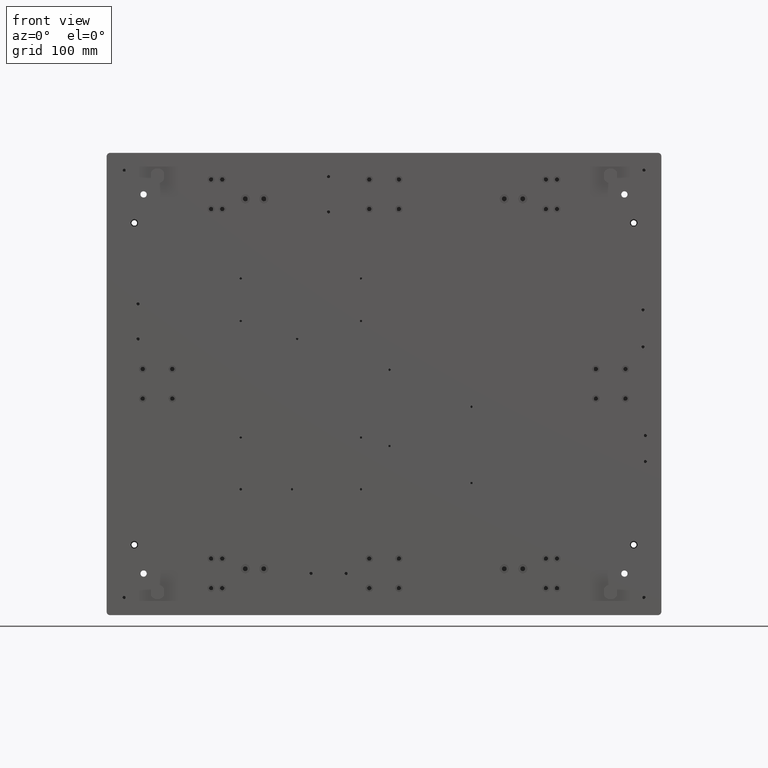
[diagram: clean part render]
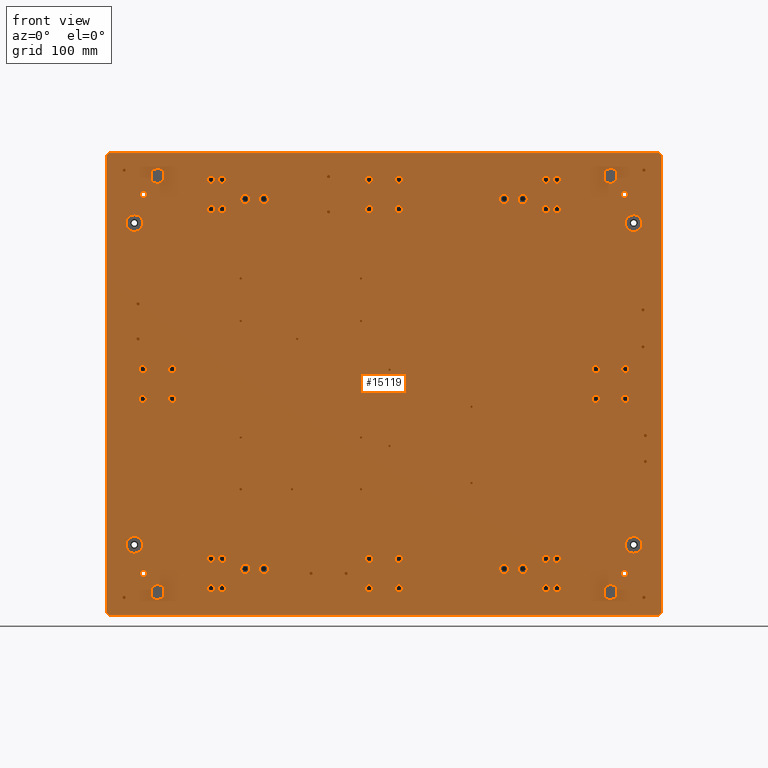
[diagram: same view with one face highlighted and labeled with its STEP entity id]
A machine part, front view. The second image highlights one B-rep face of the part: STEP entity #15119.
In plain terms, the highlighted planar face has unit normal (-0, 1, 0).
Its self-contained STEP definition (entity closure, byte-faithful):
#98 = CARTESIAN_POINT ( 'NONE',  ( 285.4512755979890244, 6.137181100506329479, 314.0000000000000000 ) ) ;
#172 = AXIS2_PLACEMENT_3D ( 'NONE', #22668, #23265, #37709 ) ;
#174 = EDGE_LOOP ( 'NONE', ( #6660 ) ) ;
#181 = ORIENTED_EDGE ( 'NONE', *, *, #9697, .F. ) ;
#205 = DIRECTION ( 'NONE',  ( 0.000000000000000000, 0.000000000000000000, -1.000000000000000000 ) ) ;
#226 = CARTESIAN_POINT ( 'NONE',  ( -170.5487244020111177, 6.137181100506329479, 762.0000000000001137 ) ) ;
#281 = AXIS2_PLACEMENT_3D ( 'NONE', #19336, #23098, #34960 ) ;
#312 = DIRECTION ( 'NONE',  ( 0.000000000000000000, 0.000000000000000000, -1.000000000000000000 ) ) ;
#329 = CARTESIAN_POINT ( 'NONE',  ( -182.5487244020110893, 6.137181100506329479, 734.0000000000002274 ) ) ;
#391 = ORIENTED_EDGE ( 'NONE', *, *, #17514, .F. ) ;
#417 = VECTOR ( 'NONE', #30283, 1000.000000000000000 ) ;
#431 = EDGE_CURVE ( 'NONE', #12954, #12954, #19010, .T. ) ;
#433 = ORIENTED_EDGE ( 'NONE', *, *, #22058, .F. ) ;
#438 = DIRECTION ( 'NONE',  ( 0.000000000000000000, 0.000000000000000000, -1.000000000000000000 ) ) ;
#576 = CARTESIAN_POINT ( 'NONE',  ( 154.4512755979889391, 6.137181100506329479, 339.9999999999999432 ) ) ;
#610 = FACE_BOUND ( 'NONE', #29082, .T. ) ;
#638 = CARTESIAN_POINT ( 'NONE',  ( -125.5487244020111461, 6.137181100506329479, 745.0000000000000000 ) ) ;
#679 = AXIS2_PLACEMENT_3D ( 'NONE', #26565, #13093, #205 ) ;
#704 = DIRECTION ( 'NONE',  ( 0.000000000000000000, -1.000000000000000000, 0.000000000000000000 ) ) ;
#807 = FACE_BOUND ( 'NONE', #37599, .T. ) ;
#820 = ORIENTED_EDGE ( 'NONE', *, *, #8994, .F. ) ;
#861 = EDGE_CURVE ( 'NONE', #31740, #31740, #34828, .T. ) ;
#862 = CARTESIAN_POINT ( 'NONE',  ( -170.5487244020110893, 6.137181100506329479, 351.9999999999999432 ) ) ;
#870 = CARTESIAN_POINT ( 'NONE',  ( 10.45127559798891781, 6.137181100506329479, 479.0000000000001137 ) ) ;
#877 = CIRCLE ( 'NONE', #5301, 1.249999999999973355 ) ;
#964 = ORIENTED_EDGE ( 'NONE', *, *, #18699, .F. ) ;
#1008 = FACE_BOUND ( 'NONE', #24603, .T. ) ;
#1093 = EDGE_CURVE ( 'NONE', #34718, #34718, #15870, .T. ) ;
#1119 = ORIENTED_EDGE ( 'NONE', *, *, #33037, .F. ) ;
#1171 = CARTESIAN_POINT ( 'NONE',  ( -265.5487244020110893, 6.137181100506329479, 710.0000000000000000 ) ) ;
#1181 = EDGE_LOOP ( 'NONE', ( #5941 ) ) ;
#1184 = EDGE_LOOP ( 'NONE', ( #25092 ) ) ;
#1199 = DIRECTION ( 'NONE',  ( 0.000000000000000000, 0.000000000000000000, 1.000000000000000000 ) ) ;
#1211 = ORIENTED_EDGE ( 'NONE', *, *, #8464, .F. ) ;
#1217 = DIRECTION ( 'NONE',  ( -0.000000000000000000, -1.000000000000000000, -0.000000000000000000 ) ) ;
#1224 = ORIENTED_EDGE ( 'NONE', *, *, #14847, .F. ) ;
#1271 = ORIENTED_EDGE ( 'NONE', *, *, #861, .F. ) ;
#1392 = FACE_BOUND ( 'NONE', #6714, .T. ) ;
#1395 = CIRCLE ( 'NONE', #23534, 4.000000000000003553 ) ;
#1454 = CARTESIAN_POINT ( 'NONE',  ( -145.5487244020110040, 6.137181100506329479, 345.0000000000000000 ) ) ;
#1461 = CARTESIAN_POINT ( 'NONE',  ( 191.4512755979889107, 6.137181100506329479, 324.0000000000000000 ) ) ;
#1552 = CARTESIAN_POINT ( 'NONE',  ( 286.9512755979889675, 6.137181100506325926, 462.6500000000000909 ) ) ;
#1558 = ORIENTED_EDGE ( 'NONE', *, *, #23975, .F. ) ;
#1560 = CARTESIAN_POINT ( 'NONE',  ( 264.4512755979890812, 6.137181100506325926, 340.0000000000001137 ) ) ;
#1607 = DIRECTION ( 'NONE',  ( 0.000000000000000000, 0.000000000000000000, 1.000000000000000000 ) ) ;
#1615 = CARTESIAN_POINT ( 'NONE',  ( -261.5487244020110325, 6.137181100506329479, 595.1499999999998636 ) ) ;
#1653 = EDGE_LOOP ( 'NONE', ( #34051 ) ) ;
#1820 = CARTESIAN_POINT ( 'NONE',  ( 191.4512755979889107, 6.137181100506329479, 351.9999999999999432 ) ) ;
#1880 = CIRCLE ( 'NONE', #15168, 4.000000000000003553 ) ;
#1899 = CARTESIAN_POINT ( 'NONE',  ( -255.5487244020110893, 6.137181100506325926, 340.0000000000000568 ) ) ;
#1913 = DIRECTION ( 'NONE',  ( 0.000000000000000000, -1.000000000000000000, 0.000000000000000000 ) ) ;
#1973 = ORIENTED_EDGE ( 'NONE', *, *, #36652, .F. ) ;
#1986 = CARTESIAN_POINT ( 'NONE',  ( -295.5487244020110893, 6.137181100506329479, 295.0000000000000568 ) ) ;
#1996 = CARTESIAN_POINT ( 'NONE',  ( -295.5487244020110893, 6.137181100506329479, 295.0000000000000568 ) ) ;
#1998 = EDGE_CURVE ( 'NONE', #10759, #10759, #33004, .T. ) ;
#2040 = CARTESIAN_POINT ( 'NONE',  ( -276.5487244020110893, 6.137181100506329479, 314.0000000000000568 ) ) ;
#2095 = DIRECTION ( 'NONE',  ( 0.000000000000000000, 0.000000000000000000, 1.000000000000000000 ) ) ;
#2157 = DIRECTION ( 'NONE',  ( 0.000000000000000000, 0.000000000000000000, 1.000000000000000000 ) ) ;
#2180 = CARTESIAN_POINT ( 'NONE',  ( -261.5487244020110325, 6.137181100506329479, 631.5000000000000000 ) ) ;
#2189 = EDGE_CURVE ( 'NONE', #26209, #26209, #3277, .T. ) ;
#2196 = DIRECTION ( 'NONE',  ( 0.000000000000000000, -1.000000000000000000, 0.000000000000000000 ) ) ;
#2257 = ORIENTED_EDGE ( 'NONE', *, *, #26989, .F. ) ;
#2289 = CARTESIAN_POINT ( 'NONE',  ( -36.54872440201101114, 6.137181100506329479, 341.6500000000000909 ) ) ;
#2321 = CIRCLE ( 'NONE', #32037, 4.000000000000003553 ) ;
#2354 = DIRECTION ( 'NONE',  ( -0.000000000000000000, -1.000000000000000000, -0.000000000000000000 ) ) ;
#2414 = DIRECTION ( 'NONE',  ( 0.000000000000000000, 0.000000000000000000, 1.000000000000000000 ) ) ;
#2568 = DIRECTION ( 'NONE',  ( 0.000000000000000000, 0.000000000000000000, -1.000000000000000000 ) ) ;
#2673 = EDGE_LOOP ( 'NONE', ( #37070 ) ) ;
#2696 = FACE_BOUND ( 'NONE', #36237, .T. ) ;
#2716 = DIRECTION ( 'NONE',  ( 0.000000000000000000, -1.000000000000000000, 0.000000000000000000 ) ) ;
#2743 = VECTOR ( 'NONE', #38776, 1000.000000000000000 ) ;
#2752 = EDGE_LOOP ( 'NONE', ( #16240 ) ) ;
#2760 = AXIS2_PLACEMENT_3D ( 'NONE', #17641, #29317, #2568 ) ;
#2761 = VERTEX_POINT ( 'NONE', #21196 ) ;
#2773 = CIRCLE ( 'NONE', #14199, 4.000000000000003553 ) ;
#2851 = AXIS2_PLACEMENT_3D ( 'NONE', #22073, #15755, #13376 ) ;
#2898 = FACE_BOUND ( 'NONE', #2752, .T. ) ;
#3008 = AXIS2_PLACEMENT_3D ( 'NONE', #1899, #26069, #11003 ) ;
#3176 = ORIENTED_EDGE ( 'NONE', *, *, #12052, .F. ) ;
#3194 = DIRECTION ( 'NONE',  ( -0.000000000000000000, -1.000000000000000000, -0.000000000000000000 ) ) ;
#3260 = AXIS2_PLACEMENT_3D ( 'NONE', #20145, #1913, #29611 ) ;
#3277 = CIRCLE ( 'NONE', #12785, 4.000000000000003553 ) ;
#3301 = DIRECTION ( 'NONE',  ( -0.000000000000000000, -1.000000000000000000, -0.000000000000000000 ) ) ;
#3357 = VERTEX_POINT ( 'NONE', #23779 ) ;
#3363 = DIRECTION ( 'NONE',  ( 0.000000000000000000, -1.000000000000000000, 0.000000000000000000 ) ) ;
#3372 = CIRCLE ( 'NONE', #24862, 1.650000000000040323 ) ;
#3385 = CARTESIAN_POINT ( 'NONE',  ( 191.4512755979889107, 6.137181100506329479, 766.0000000000001137 ) ) ;
#3388 = EDGE_CURVE ( 'NONE', #36658, #36658, #33447, .T. ) ;
#3446 = AXIS2_PLACEMENT_3D ( 'NONE', #30043, #2716, #11841 ) ;
#3548 = CARTESIAN_POINT ( 'NONE',  ( -240.5487244020110325, 6.137181100506328590, 316.6000000000000227 ) ) ;
#3552 = VERTEX_POINT ( 'NONE', #33054 ) ;
#3582 = FACE_BOUND ( 'NONE', #2673, .T. ) ;
#3612 = DIRECTION ( 'NONE',  ( 0.000000000000000000, 0.000000000000000000, -1.000000000000000000 ) ) ;
#3619 = CIRCLE ( 'NONE', #23876, 4.000000000000003553 ) ;
#3670 = EDGE_CURVE ( 'NONE', #21619, #21619, #1880, .T. ) ;
#3673 = CARTESIAN_POINT ( 'NONE',  ( -285.5487244020110325, 6.137181100506329479, 785.0000000000000000 ) ) ;
#3695 = CARTESIAN_POINT ( 'NONE',  ( -20.54872440201099693, 6.137181100506329479, 614.2500000000000000 ) ) ;
#3733 = CARTESIAN_POINT ( 'NONE',  ( -295.5487244020110893, 6.137181100506329479, 295.0000000000000568 ) ) ;
#3746 = EDGE_LOOP ( 'NONE', ( #37391 ) ) ;
#3774 = CIRCLE ( 'NONE', #37302, 1.249999999999973355 ) ;
#3812 = DIRECTION ( 'NONE',  ( 0.000000000000000000, -1.000000000000000000, 0.000000000000000000 ) ) ;
#3869 = DIRECTION ( 'NONE',  ( 0.000000000000000000, -1.000000000000000000, 0.000000000000000000 ) ) ;
#3958 = FACE_BOUND ( 'NONE', #13312, .T. ) ;
#4063 = CIRCLE ( 'NONE', #31264, 1.249999999999973355 ) ;
#4270 = CIRCLE ( 'NONE', #3008, 3.399999999999958611 ) ;
#4276 = CIRCLE ( 'NONE', #39094, 1.249999999999973355 ) ;
#4280 = VERTEX_POINT ( 'NONE', #36956 ) ;
#4337 = ORIENTED_EDGE ( 'NONE', *, *, #36797, .F. ) ;
#4353 = FACE_BOUND ( 'NONE', #16183, .T. ) ;
#4376 = VERTEX_POINT ( 'NONE', #28739 ) ;
#4434 = EDGE_CURVE ( 'NONE', #22601, #22601, #18341, .T. ) ;
#4551 = FACE_BOUND ( 'NONE', #17845, .T. ) ;
#4720 = AXIS2_PLACEMENT_3D ( 'NONE', #15347, #27419, #12572 ) ;
#4722 = ORIENTED_EDGE ( 'NONE', *, *, #21273, .F. ) ;
#4829 = CARTESIAN_POINT ( 'NONE',  ( -256.5487244020111461, 6.137181100506329479, 557.0000000000000000 ) ) ;
#4880 = DIRECTION ( 'NONE',  ( 0.000000000000000000, 0.000000000000000000, -1.000000000000000000 ) ) ;
#4911 = CARTESIAN_POINT ( 'NONE',  ( -255.5487244020110893, 6.137181100506325926, 750.0000000000000000 ) ) ;
#4948 = FACE_BOUND ( 'NONE', #33854, .T. ) ;
#4981 = EDGE_CURVE ( 'NONE', #7196, #30927, #12084, .T. ) ;
#5144 = EDGE_CURVE ( 'NONE', #12706, #12706, #7652, .T. ) ;
#5177 = DIRECTION ( 'NONE',  ( 0.000000000000000000, 0.000000000000000000, -1.000000000000000000 ) ) ;
#5301 = AXIS2_PLACEMENT_3D ( 'NONE', #14672, #2196, #11309 ) ;
#5308 = ORIENTED_EDGE ( 'NONE', *, *, #20761, .F. ) ;
#5380 = CIRCLE ( 'NONE', #14263, 4.000000000000003553 ) ;
#5401 = CIRCLE ( 'NONE', #38907, 4.000000000000003553 ) ;
#5441 = CARTESIAN_POINT ( 'NONE',  ( 294.4512755979890244, 6.137181100506329479, 784.9999999999998863 ) ) ;
#5449 = CIRCLE ( 'NONE', #10527, 1.649999999999929301 ) ;
#5456 = DIRECTION ( 'NONE',  ( 0.000000000000000000, -1.000000000000000000, 0.000000000000000000 ) ) ;
#5487 = DIRECTION ( 'NONE',  ( 0.000000000000000000, 0.000000000000000000, 1.000000000000000000 ) ) ;
#5525 = VERTEX_POINT ( 'NONE', #8506 ) ;
#5608 = ORIENTED_EDGE ( 'NONE', *, *, #30330, .F. ) ;
#5626 = CIRCLE ( 'NONE', #37900, 9.000000000000007105 ) ;
#5667 = FACE_BOUND ( 'NONE', #36384, .T. ) ;
#5685 = DIRECTION ( 'NONE',  ( 0.000000000000000000, -1.000000000000000000, 0.000000000000000000 ) ) ;
#5740 = DIRECTION ( 'NONE',  ( 0.000000000000000000, 0.000000000000000000, 1.000000000000000000 ) ) ;
#5770 = DIRECTION ( 'NONE',  ( 0.000000000000000000, 0.000000000000000000, -1.000000000000000000 ) ) ;
#5771 = DIRECTION ( 'NONE',  ( 0.000000000000000000, 0.000000000000000000, -1.000000000000000000 ) ) ;
#5811 = CARTESIAN_POINT ( 'NONE',  ( 304.4512755979889107, 6.137181100506329479, 295.0000000000000568 ) ) ;
#5866 = PLANE ( 'NONE',  #18431 ) ;
#5887 = AXIS2_PLACEMENT_3D ( 'NONE', #15471, #21018, #30319 ) ;
#5941 = ORIENTED_EDGE ( 'NONE', *, *, #38109, .F. ) ;
#5958 = EDGE_CURVE ( 'NONE', #23571, #23571, #17210, .T. ) ;
#5964 = AXIS2_PLACEMENT_3D ( 'NONE', #5441, #17923, #2095 ) ;
#5970 = EDGE_CURVE ( 'NONE', #11301, #11301, #19093, .T. ) ;
#6044 = VERTEX_POINT ( 'NONE', #21301 ) ;
#6048 = EDGE_CURVE ( 'NONE', #28609, #16503, #1395, .T. ) ;
#6069 = DIRECTION ( 'NONE',  ( -0.000000000000000000, -1.000000000000000000, -0.000000000000000000 ) ) ;
#6103 = DIRECTION ( 'NONE',  ( 0.000000000000000000, 0.000000000000000000, -1.000000000000000000 ) ) ;
#6112 = CARTESIAN_POINT ( 'NONE',  ( -170.5487244020111177, 6.137181100506329479, 766.0000000000001137 ) ) ;
#6116 = CIRCLE ( 'NONE', #11181, 1.650000000000040323 ) ;
#6140 = CARTESIAN_POINT ( 'NONE',  ( 249.4512755979889675, 6.137181100506328590, 320.0000000000001137 ) ) ;
#6326 = CARTESIAN_POINT ( 'NONE',  ( -265.5487244020110325, 6.137181100506329479, 371.0000000000000000 ) ) ;
#6341 = DIRECTION ( 'NONE',  ( 0.000000000000000000, 0.000000000000000000, -1.000000000000000000 ) ) ;
#6551 = FACE_BOUND ( 'NONE', #1184, .T. ) ;
#6596 = ORIENTED_EDGE ( 'NONE', *, *, #6048, .F. ) ;
#6660 = ORIENTED_EDGE ( 'NONE', *, *, #27443, .F. ) ;
#6714 = EDGE_LOOP ( 'NONE', ( #19535 ) ) ;
#6720 = CIRCLE ( 'NONE', #20655, 3.400000000000069633 ) ;
#6756 = FACE_BOUND ( 'NONE', #37581, .T. ) ;
#6916 = EDGE_CURVE ( 'NONE', #11881, #11881, #14740, .T. ) ;
#6918 = CARTESIAN_POINT ( 'NONE',  ( 294.4512755979890244, 6.137181100506329479, 786.6499999999999773 ) ) ;
#6958 = CARTESIAN_POINT ( 'NONE',  ( -150.5487244020110609, 6.137181100506329479, 660.2500000000000000 ) ) ;
#6990 = CARTESIAN_POINT ( 'NONE',  ( -150.5487244020110609, 6.137181100506329479, 659.0000000000000000 ) ) ;
#7035 = ORIENTED_EDGE ( 'NONE', *, *, #35121, .F. ) ;
#7052 = EDGE_LOOP ( 'NONE', ( #34882 ) ) ;
#7074 = AXIS2_PLACEMENT_3D ( 'NONE', #20810, #18244, #21004 ) ;
#7115 = ORIENTED_EDGE ( 'NONE', *, *, #17241, .F. ) ;
#7137 = FACE_BOUND ( 'NONE', #29757, .T. ) ;
#7184 = AXIS2_PLACEMENT_3D ( 'NONE', #27372, #24418, #438 ) ;
#7196 = VERTEX_POINT ( 'NONE', #29165 ) ;
#7207 = DIRECTION ( 'NONE',  ( -0.000000000000000000, -1.000000000000000000, -0.000000000000000000 ) ) ;
#7220 = ORIENTED_EDGE ( 'NONE', *, *, #26475, .F. ) ;
#7223 = EDGE_CURVE ( 'NONE', #11679, #11679, #34968, .T. ) ;
#7344 = FACE_BOUND ( 'NONE', #26419, .T. ) ;
#7401 = AXIS2_PLACEMENT_3D ( 'NONE', #6140, #18224, #33832 ) ;
#7424 = DIRECTION ( 'NONE',  ( 0.000000000000000000, -1.000000000000000000, 0.000000000000000000 ) ) ;
#7466 = VERTEX_POINT ( 'NONE', #31599 ) ;
#7542 = FACE_BOUND ( 'NONE', #26715, .T. ) ;
#7558 = CARTESIAN_POINT ( 'NONE',  ( -261.5487244020110325, 6.137181100506329479, 593.4999999999998863 ) ) ;
#7565 = EDGE_LOOP ( 'NONE', ( #3176 ) ) ;
#7582 = DIRECTION ( 'NONE',  ( -0.000000000000000000, -1.000000000000000000, -0.000000000000000000 ) ) ;
#7652 = CIRCLE ( 'NONE', #15257, 4.000000000000003553 ) ;
#7718 = CARTESIAN_POINT ( 'NONE',  ( -20.54872440201099693, 6.137181100506329479, 613.0000000000000000 ) ) ;
#7766 = CARTESIAN_POINT ( 'NONE',  ( 294.4512755979889107, 6.137181100506329479, 306.6500000000000341 ) ) ;
#7769 = EDGE_LOOP ( 'NONE', ( #1224 ) ) ;
#7800 = ORIENTED_EDGE ( 'NONE', *, *, #5958, .F. ) ;
#7851 = CARTESIAN_POINT ( 'NONE',  ( 20.45127559798887162, 6.137181100506329479, 324.0000000000000568 ) ) ;
#7856 = CARTESIAN_POINT ( 'NONE',  ( -145.5487244020110325, 6.137181100506329479, 740.0000000000001137 ) ) ;
#7919 = DIRECTION ( 'NONE',  ( 0.000000000000000000, 0.000000000000000000, 1.000000000000000000 ) ) ;
#8088 = AXIS2_PLACEMENT_3D ( 'NONE', #26517, #17220, #2157 ) ;
#8099 = CARTESIAN_POINT ( 'NONE',  ( 264.4512755979890812, 6.137181100506325926, 750.0000000000000000 ) ) ;
#8119 = DIRECTION ( 'NONE',  ( -0.000000000000000000, -1.000000000000000000, -0.000000000000000000 ) ) ;
#8126 = EDGE_CURVE ( 'NONE', #28482, #28482, #30014, .T. ) ;
#8249 = CARTESIAN_POINT ( 'NONE',  ( -150.5487244020110609, 6.137181100506329479, 488.2500000000000568 ) ) ;
#8283 = EDGE_CURVE ( 'NONE', #18607, #18607, #38877, .T. ) ;
#8383 = DIRECTION ( 'NONE',  ( -0.000000000000000000, -1.000000000000000000, -0.000000000000000000 ) ) ;
#8464 = EDGE_CURVE ( 'NONE', #25333, #25333, #38239, .T. ) ;
#8479 = CARTESIAN_POINT ( 'NONE',  ( 179.4512755979889675, 6.137181100506329479, 730.0000000000002274 ) ) ;
#8506 = CARTESIAN_POINT ( 'NONE',  ( 20.45127559798887162, 6.137181100506329479, 730.0000000000001137 ) ) ;
#8530 = DIRECTION ( 'NONE',  ( 0.000000000000000000, 1.000000000000000000, 0.000000000000000000 ) ) ;
#8621 = EDGE_LOOP ( 'NONE', ( #181 ) ) ;
#8657 = FACE_BOUND ( 'NONE', #3746, .T. ) ;
#8659 = AXIS2_PLACEMENT_3D ( 'NONE', #638, #18677, #3612 ) ;
#8760 = DIRECTION ( 'NONE',  ( 0.000000000000000000, 0.000000000000000000, 1.000000000000000000 ) ) ;
#8811 = EDGE_CURVE ( 'NONE', #27716, #27716, #24269, .T. ) ;
#8853 = FACE_BOUND ( 'NONE', #14070, .T. ) ;
#8921 = EDGE_CURVE ( 'NONE', #16027, #16027, #34397, .T. ) ;
#8944 = DIRECTION ( 'NONE',  ( -0.000000000000000000, -1.000000000000000000, -0.000000000000000000 ) ) ;
#8994 = EDGE_CURVE ( 'NONE', #37001, #37001, #14189, .T. ) ;
#9037 = EDGE_CURVE ( 'NONE', #34422, #34422, #877, .T. ) ;
#9039 = EDGE_CURVE ( 'NONE', #19186, #19186, #12274, .T. ) ;
#9114 = DIRECTION ( 'NONE',  ( 0.000000000000000000, 0.000000000000000000, -1.000000000000000000 ) ) ;
#9118 = EDGE_CURVE ( 'NONE', #37396, #37396, #28069, .T. ) ;
#9126 = CARTESIAN_POINT ( 'NONE',  ( 300.4512755979889107, 6.137181100506329479, 299.0000000000000568 ) ) ;
#9164 = DIRECTION ( 'NONE',  ( 0.000000000000000000, 0.000000000000000000, -1.000000000000000000 ) ) ;
#9220 = CARTESIAN_POINT ( 'NONE',  ( -125.5487244020111177, 6.137181100506329479, 339.9999999999999432 ) ) ;
#9241 = AXIS2_PLACEMENT_3D ( 'NONE', #35131, #19692, #23267 ) ;
#9255 = EDGE_CURVE ( 'NONE', #35218, #35218, #10378, .T. ) ;
#9279 = AXIS2_PLACEMENT_3D ( 'NONE', #12214, #3301, #17970 ) ;
#9283 = CARTESIAN_POINT ( 'NONE',  ( -295.5487244020110893, 6.137181100506329479, 795.0000000000000000 ) ) ;
#9288 = ORIENTED_EDGE ( 'NONE', *, *, #26797, .F. ) ;
#9328 = DIRECTION ( 'NONE',  ( 0.000000000000000000, 0.000000000000000000, 1.000000000000000000 ) ) ;
#9343 = EDGE_CURVE ( 'NONE', #19978, #19978, #36938, .T. ) ;
#9376 = VERTEX_POINT ( 'NONE', #28154 ) ;
#9452 = EDGE_LOOP ( 'NONE', ( #18584 ) ) ;
#9544 = CARTESIAN_POINT ( 'NONE',  ( 179.4512755979889675, 6.137181100506329479, 351.9999999999999432 ) ) ;
#9557 = ORIENTED_EDGE ( 'NONE', *, *, #20369, .F. ) ;
#9611 = CARTESIAN_POINT ( 'NONE',  ( -285.5487244020110325, 6.137181100506329479, 786.6500000000000909 ) ) ;
#9613 = DIRECTION ( 'NONE',  ( 0.000000000000000000, 0.000000000000000000, 1.000000000000000000 ) ) ;
#9646 = DIRECTION ( 'NONE',  ( 0.000000000000000000, 0.000000000000000000, 1.000000000000000000 ) ) ;
#9697 = EDGE_CURVE ( 'NONE', #28676, #28676, #17368, .T. ) ;
#9727 = AXIS2_PLACEMENT_3D ( 'NONE', #33057, #21586, #12086 ) ;
#9746 = CARTESIAN_POINT ( 'NONE',  ( -182.5487244020110893, 6.137181100506329479, 730.0000000000002274 ) ) ;
#9755 = DIRECTION ( 'NONE',  ( 0.000000000000000000, 0.000000000000000000, -1.000000000000000000 ) ) ;
#9834 = CARTESIAN_POINT ( 'NONE',  ( 284.4512755979889107, 6.137181100506325926, 625.0000000000000000 ) ) ;
#9840 = VERTEX_POINT ( 'NONE', #25098 ) ;
#9892 = VERTEX_POINT ( 'NONE', #37206 ) ;
#9897 = DIRECTION ( 'NONE',  ( 0.000000000000000000, 0.000000000000000000, 1.000000000000000000 ) ) ;
#9912 = CARTESIAN_POINT ( 'NONE',  ( 284.4512755979889107, 6.137181100506325926, 585.0000000000000000 ) ) ;
#9918 = DIRECTION ( 'NONE',  ( 0.000000000000000000, -1.000000000000000000, 0.000000000000000000 ) ) ;
#9923 = FACE_BOUND ( 'NONE', #18038, .T. ) ;
#10042 = CARTESIAN_POINT ( 'NONE',  ( 191.4512755979889107, 6.137181100506329479, 320.0000000000000000 ) ) ;
#10084 = CARTESIAN_POINT ( 'NONE',  ( -95.04872440201103245, 6.137181100506329479, 432.2500000000000000 ) ) ;
#10113 = FACE_BOUND ( 'NONE', #33083, .T. ) ;
#10137 = VECTOR ( 'NONE', #21271, 1000.000000000000000 ) ;
#10313 = ORIENTED_EDGE ( 'NONE', *, *, #25619, .F. ) ;
#10378 = CIRCLE ( 'NONE', #9727, 1.650000000000040323 ) ;
#10400 = CARTESIAN_POINT ( 'NONE',  ( 300.4512755979889107, 6.137181100506329479, 295.0000000000000568 ) ) ;
#10440 = CIRCLE ( 'NONE', #2851, 5.000000000000004441 ) ;
#10507 = FACE_BOUND ( 'NONE', #8621, .T. ) ;
#10527 = AXIS2_PLACEMENT_3D ( 'NONE', #2180, #28522, #35440 ) ;
#10556 = DIRECTION ( 'NONE',  ( -0.000000000000000000, -1.000000000000000000, -0.000000000000000000 ) ) ;
#10583 = CARTESIAN_POINT ( 'NONE',  ( 10.45127559798891781, 6.137181100506329479, 561.5000000000000000 ) ) ;
#10672 = CARTESIAN_POINT ( 'NONE',  ( 264.4512755979890812, 6.137181100506325926, 343.4000000000000909 ) ) ;
#10759 = VERTEX_POINT ( 'NONE', #17103 ) ;
#10896 = FACE_BOUND ( 'NONE', #37236, .T. ) ;
#10969 = VERTEX_POINT ( 'NONE', #16930 ) ;
#10991 = AXIS2_PLACEMENT_3D ( 'NONE', #34016, #16009, #15622 ) ;
#11003 = DIRECTION ( 'NONE',  ( 0.000000000000000000, 0.000000000000000000, 1.000000000000000000 ) ) ;
#11047 = DIRECTION ( 'NONE',  ( 0.000000000000000000, -1.000000000000000000, 0.000000000000000000 ) ) ;
#11089 = DIRECTION ( 'NONE',  ( -0.000000000000000000, -1.000000000000000000, -0.000000000000000000 ) ) ;
#11101 = AXIS2_PLACEMENT_3D ( 'NONE', #1461, #7207, #13773 ) ;
#11112 = VERTEX_POINT ( 'NONE', #23207 ) ;
#11116 = DIRECTION ( 'NONE',  ( 0.000000000000000000, -1.000000000000000000, 0.000000000000000000 ) ) ;
#11181 = AXIS2_PLACEMENT_3D ( 'NONE', #18949, #21140, #9646 ) ;
#11278 = DIRECTION ( 'NONE',  ( 0.000000000000000000, 0.000000000000000000, -1.000000000000000000 ) ) ;
#11288 = EDGE_LOOP ( 'NONE', ( #1119 ) ) ;
#11296 = EDGE_CURVE ( 'NONE', #37578, #14710, #25057, .T. ) ;
#11297 = EDGE_LOOP ( 'NONE', ( #16437 ) ) ;
#11301 = VERTEX_POINT ( 'NONE', #35448 ) ;
#11309 = DIRECTION ( 'NONE',  ( 0.000000000000000000, 0.000000000000000000, 1.000000000000000000 ) ) ;
#11397 = VERTEX_POINT ( 'NONE', #38141 ) ;
#11497 = ORIENTED_EDGE ( 'NONE', *, *, #11636, .F. ) ;
#11554 = CARTESIAN_POINT ( 'NONE',  ( 304.4512755979889107, 6.137181100506329479, 299.0000000000000568 ) ) ;
#11606 = CARTESIAN_POINT ( 'NONE',  ( -170.5487244020110893, 6.137181100506329479, 734.0000000000002274 ) ) ;
#11619 = DIRECTION ( 'NONE',  ( 0.000000000000000000, 0.000000000000000000, 1.000000000000000000 ) ) ;
#11636 = EDGE_CURVE ( 'NONE', #14615, #14615, #24469, .T. ) ;
#11679 = VERTEX_POINT ( 'NONE', #39211 ) ;
#11841 = DIRECTION ( 'NONE',  ( 0.000000000000000000, 0.000000000000000000, 1.000000000000000000 ) ) ;
#11881 = VERTEX_POINT ( 'NONE', #23974 ) ;
#11921 = CARTESIAN_POINT ( 'NONE',  ( -20.54872440201099693, 6.137181100506329479, 659.0000000000000000 ) ) ;
#11932 = EDGE_CURVE ( 'NONE', #15199, #15199, #3619, .T. ) ;
#12002 = DIRECTION ( 'NONE',  ( -0.000000000000000000, -1.000000000000000000, -0.000000000000000000 ) ) ;
#12028 = ORIENTED_EDGE ( 'NONE', *, *, #31561, .F. ) ;
#12052 = EDGE_CURVE ( 'NONE', #12426, #12426, #13771, .T. ) ;
#12084 = CIRCLE ( 'NONE', #12705, 4.000000000000003553 ) ;
#12086 = DIRECTION ( 'NONE',  ( 0.000000000000000000, 0.000000000000000000, 1.000000000000000000 ) ) ;
#12202 = CARTESIAN_POINT ( 'NONE',  ( 20.45127559798887162, 6.137181100506329479, 356.0000000000000000 ) ) ;
#12214 = CARTESIAN_POINT ( 'NONE',  ( -11.54872440201098982, 6.137181100506329479, 766.0000000000000000 ) ) ;
#12216 = DIRECTION ( 'NONE',  ( 0.000000000000000000, -1.000000000000000000, 0.000000000000000000 ) ) ;
#12274 = CIRCLE ( 'NONE', #37562, 9.000000000000007105 ) ;
#12372 = CIRCLE ( 'NONE', #34499, 1.650000000000040323 ) ;
#12397 = AXIS2_PLACEMENT_3D ( 'NONE', #20819, #38837, #18252 ) ;
#12416 = EDGE_CURVE ( 'NONE', #19137, #19137, #23902, .T. ) ;
#12426 = VERTEX_POINT ( 'NONE', #13010 ) ;
#12521 = EDGE_LOOP ( 'NONE', ( #21308 ) ) ;
#12550 = DIRECTION ( 'NONE',  ( 0.000000000000000000, 0.000000000000000000, 1.000000000000000000 ) ) ;
#12572 = DIRECTION ( 'NONE',  ( 0.000000000000000000, 0.000000000000000000, -1.000000000000000000 ) ) ;
#12675 = ORIENTED_EDGE ( 'NONE', *, *, #5144, .F. ) ;
#12693 = AXIS2_PLACEMENT_3D ( 'NONE', #13371, #7424, #19297 ) ;
#12695 = FACE_BOUND ( 'NONE', #13935, .T. ) ;
#12705 = AXIS2_PLACEMENT_3D ( 'NONE', #34259, #25178, #34453 ) ;
#12706 = VERTEX_POINT ( 'NONE', #24790 ) ;
#12785 = AXIS2_PLACEMENT_3D ( 'NONE', #21015, #8944, #18054 ) ;
#12894 = FACE_BOUND ( 'NONE', #27940, .T. ) ;
#12926 = CARTESIAN_POINT ( 'NONE',  ( -150.5487244020110609, 6.137181100506329479, 487.0000000000000568 ) ) ;
#12954 = VERTEX_POINT ( 'NONE', #28770 ) ;
#12966 = CIRCLE ( 'NONE', #33184, 1.649999999999984812 ) ;
#13010 = CARTESIAN_POINT ( 'NONE',  ( 179.4512755979889675, 6.137181100506329479, 762.0000000000001137 ) ) ;
#13071 = CARTESIAN_POINT ( 'NONE',  ( -55.54872440201100403, 6.137181100506329479, 732.6499999999997499 ) ) ;
#13093 = DIRECTION ( 'NONE',  ( -0.000000000000000000, -1.000000000000000000, -0.000000000000000000 ) ) ;
#13105 = FACE_BOUND ( 'NONE', #22011, .T. ) ;
#13136 = DIRECTION ( 'NONE',  ( 0.000000000000000000, -1.000000000000000000, 0.000000000000000000 ) ) ;
#13211 = VERTEX_POINT ( 'NONE', #11554 ) ;
#13275 = ORIENTED_EDGE ( 'NONE', *, *, #24797, .F. ) ;
#13293 = ORIENTED_EDGE ( 'NONE', *, *, #26443, .F. ) ;
#13295 = FACE_BOUND ( 'NONE', #15849, .T. ) ;
#13312 = EDGE_LOOP ( 'NONE', ( #28810 ) ) ;
#13371 = CARTESIAN_POINT ( 'NONE',  ( -276.5487244020110325, 6.137181100506329479, 776.0000000000001137 ) ) ;
#13376 = DIRECTION ( 'NONE',  ( 0.000000000000000000, 0.000000000000000000, -1.000000000000000000 ) ) ;
#13463 = DIRECTION ( 'NONE',  ( 0.000000000000000000, -1.000000000000000000, 0.000000000000000000 ) ) ;
#13564 = VERTEX_POINT ( 'NONE', #28789 ) ;
#13592 = EDGE_CURVE ( 'NONE', #19723, #19723, #18920, .T. ) ;
#13713 = AXIS2_PLACEMENT_3D ( 'NONE', #32018, #17357, #38735 ) ;
#13771 = CIRCLE ( 'NONE', #39056, 4.000000000000003553 ) ;
#13773 = DIRECTION ( 'NONE',  ( 0.000000000000000000, 0.000000000000000000, -1.000000000000000000 ) ) ;
#13795 = EDGE_LOOP ( 'NONE', ( #5308 ) ) ;
#13876 = CARTESIAN_POINT ( 'NONE',  ( -74.54872440201104666, 6.137181100506329479, 340.0000000000000568 ) ) ;
#13895 = FACE_BOUND ( 'NONE', #25182, .T. ) ;
#13924 = ORIENTED_EDGE ( 'NONE', *, *, #2189, .F. ) ;
#13935 = EDGE_LOOP ( 'NONE', ( #27494 ) ) ;
#13981 = AXIS2_PLACEMENT_3D ( 'NONE', #28965, #26198, #20064 ) ;
#14027 = CARTESIAN_POINT ( 'NONE',  ( 179.4512755979889675, 6.137181100506329479, 355.9999999999999432 ) ) ;
#14070 = EDGE_LOOP ( 'NONE', ( #7115 ) ) ;
#14085 = FACE_BOUND ( 'NONE', #9452, .T. ) ;
#14189 = CIRCLE ( 'NONE', #2760, 4.000000000000003553 ) ;
#14199 = AXIS2_PLACEMENT_3D ( 'NONE', #23253, #20086, #17297 ) ;
#14200 = CARTESIAN_POINT ( 'NONE',  ( -20.54872440201099693, 6.137181100506329479, 432.2500000000000000 ) ) ;
#14220 = DIRECTION ( 'NONE',  ( -0.000000000000000000, -1.000000000000000000, -0.000000000000000000 ) ) ;
#14229 = AXIS2_PLACEMENT_3D ( 'NONE', #12926, #13136, #25398 ) ;
#14263 = AXIS2_PLACEMENT_3D ( 'NONE', #35426, #2354, #11278 ) ;
#14338 = AXIS2_PLACEMENT_3D ( 'NONE', #22604, #38767, #1607 ) ;
#14390 = VERTEX_POINT ( 'NONE', #26457 ) ;
#14403 = ORIENTED_EDGE ( 'NONE', *, *, #23016, .F. ) ;
#14425 = CIRCLE ( 'NONE', #15036, 4.000000000000003553 ) ;
#14446 = ORIENTED_EDGE ( 'NONE', *, *, #3670, .F. ) ;
#14491 = EDGE_LOOP ( 'NONE', ( #433 ) ) ;
#14515 = EDGE_CURVE ( 'NONE', #14710, #13211, #24442, .T. ) ;
#14517 = DIRECTION ( 'NONE',  ( -0.000000000000000000, -1.000000000000000000, -0.000000000000000000 ) ) ;
#14615 = VERTEX_POINT ( 'NONE', #29837 ) ;
#14616 = DIRECTION ( 'NONE',  ( 0.000000000000000000, 0.000000000000000000, 1.000000000000000000 ) ) ;
#14658 = EDGE_CURVE ( 'NONE', #38720, #38720, #27832, .T. ) ;
#14672 = CARTESIAN_POINT ( 'NONE',  ( -95.04872440201103245, 6.137181100506329479, 431.0000000000000568 ) ) ;
#14710 = VERTEX_POINT ( 'NONE', #22234 ) ;
#14721 = VERTEX_POINT ( 'NONE', #33106 ) ;
#14740 = CIRCLE ( 'NONE', #30555, 3.399999999999958611 ) ;
#14783 = DIRECTION ( 'NONE',  ( 0.000000000000000000, 0.000000000000000000, -1.000000000000000000 ) ) ;
#14844 = CARTESIAN_POINT ( 'NONE',  ( 10.45127559798891781, 6.137181100506329479, 560.2500000000000000 ) ) ;
#14847 = EDGE_CURVE ( 'NONE', #14390, #14390, #33537, .T. ) ;
#14919 = ORIENTED_EDGE ( 'NONE', *, *, #34935, .F. ) ;
#14973 = DIRECTION ( 'NONE',  ( 0.000000000000000000, 0.000000000000000000, 1.000000000000000000 ) ) ;
#14983 = DIRECTION ( 'NONE',  ( 0.000000000000000000, 0.000000000000000000, -1.000000000000000000 ) ) ;
#14991 = FACE_BOUND ( 'NONE', #36438, .T. ) ;
#15003 = ORIENTED_EDGE ( 'NONE', *, *, #9343, .F. ) ;
#15036 = AXIS2_PLACEMENT_3D ( 'NONE', #21236, #18269, #9164 ) ;
#15105 = ORIENTED_EDGE ( 'NONE', *, *, #1093, .F. ) ;
#15119 = ADVANCED_FACE ( 'NONE', ( #19031, #18838, #3958, #30897, #13295, #25365, #7344, #16062, #21799, #28128, #16266, #1008, #12894, #807, #13105, #30704, #33872, #34260, #24970, #15867, #37234, #25179, #25561, #19422, #37426, #28519, #9923, #28331, #3582, #10113, #33674, #34064, #6756, #22187, #22385, #7137, #36844, #19220, #31484, #4353, #16455, #1392, #610, #21609, #6551, #18642, #15674, #27749, #12695, #8657, #13895, #17957, #17049, #22983, #29824, #16652, #20733, #2696, #20012, #23910, #29107, #26868, #22589, #7542, #23708, #2898, #35978, #31879, #14991, #27072, #31681, #38954, #8853, #10507, #20924, #32794, #25961, #14085, #4551, #5667, #10896, #32989, #38028, #34659, #4948 ), #5866, .F. ) ;
#15153 = DIRECTION ( 'NONE',  ( -0.000000000000000000, -1.000000000000000000, -0.000000000000000000 ) ) ;
#15168 = AXIS2_PLACEMENT_3D ( 'NONE', #14027, #20340, #32225 ) ;
#15199 = VERTEX_POINT ( 'NONE', #31405 ) ;
#15257 = AXIS2_PLACEMENT_3D ( 'NONE', #12202, #11089, #29821 ) ;
#15315 = CARTESIAN_POINT ( 'NONE',  ( -36.54872440201101114, 6.137181100506329479, 340.0000000000000568 ) ) ;
#15321 = EDGE_LOOP ( 'NONE', ( #9288 ) ) ;
#15347 = CARTESIAN_POINT ( 'NONE',  ( 249.4512755979888539, 6.137181100506328590, 770.0000000000001137 ) ) ;
#15373 = DIRECTION ( 'NONE',  ( 0.000000000000000000, 0.000000000000000000, 1.000000000000000000 ) ) ;
#15434 = DIRECTION ( 'NONE',  ( -0.000000000000000000, -1.000000000000000000, -0.000000000000000000 ) ) ;
#15442 = CARTESIAN_POINT ( 'NONE',  ( -170.5487244020110893, 6.137181100506329479, 730.0000000000002274 ) ) ;
#15471 = CARTESIAN_POINT ( 'NONE',  ( -20.54872440201099693, 6.137181100506329479, 487.0000000000000568 ) ) ;
#15553 = CARTESIAN_POINT ( 'NONE',  ( 191.4512755979889107, 6.137181100506329479, 730.0000000000002274 ) ) ;
#15589 = CIRCLE ( 'NONE', #24444, 4.000000000000003553 ) ;
#15622 = DIRECTION ( 'NONE',  ( 0.000000000000000000, 0.000000000000000000, -1.000000000000000000 ) ) ;
#15637 = ORIENTED_EDGE ( 'NONE', *, *, #36682, .F. ) ;
#15643 = CARTESIAN_POINT ( 'NONE',  ( 249.4512755979888539, 6.137181100506328590, 766.6000000000001364 ) ) ;
#15674 = FACE_BOUND ( 'NONE', #27149, .T. ) ;
#15755 = DIRECTION ( 'NONE',  ( -0.000000000000000000, -1.000000000000000000, -0.000000000000000000 ) ) ;
#15849 = EDGE_LOOP ( 'NONE', ( #1211 ) ) ;
#15867 = FACE_BOUND ( 'NONE', #16880, .T. ) ;
#15870 = CIRCLE ( 'NONE', #32290, 4.000000000000003553 ) ;
#15959 = ORIENTED_EDGE ( 'NONE', *, *, #26360, .F. ) ;
#16009 = DIRECTION ( 'NONE',  ( -0.000000000000000000, -1.000000000000000000, -0.000000000000000000 ) ) ;
#16027 = VERTEX_POINT ( 'NONE', #24937 ) ;
#16062 = FACE_BOUND ( 'NONE', #18300, .T. ) ;
#16105 = AXIS2_PLACEMENT_3D ( 'NONE', #23166, #8119, #6103 ) ;
#16131 = VERTEX_POINT ( 'NONE', #16873 ) ;
#16183 = EDGE_LOOP ( 'NONE', ( #10313 ) ) ;
#16240 = ORIENTED_EDGE ( 'NONE', *, *, #27580, .F. ) ;
#16266 = FACE_BOUND ( 'NONE', #12521, .T. ) ;
#16437 = ORIENTED_EDGE ( 'NONE', *, *, #24309, .F. ) ;
#16455 = FACE_BOUND ( 'NONE', #35370, .T. ) ;
#16469 = EDGE_LOOP ( 'NONE', ( #13275, #35898, #29744, #7220, #31457, #24760, #6596, #14919 ) ) ;
#16470 = DIRECTION ( 'NONE',  ( 0.000000000000000000, 0.000000000000000000, -1.000000000000000000 ) ) ;
#16482 = VERTEX_POINT ( 'NONE', #1615 ) ;
#16503 = VERTEX_POINT ( 'NONE', #20898 ) ;
#16652 = FACE_BOUND ( 'NONE', #34087, .T. ) ;
#16727 = VERTEX_POINT ( 'NONE', #22859 ) ;
#16824 = ORIENTED_EDGE ( 'NONE', *, *, #7223, .F. ) ;
#16858 = DIRECTION ( 'NONE',  ( 0.000000000000000000, -0.000000000000000000, 1.000000000000000000 ) ) ;
#16873 = CARTESIAN_POINT ( 'NONE',  ( -55.54872440201100403, 6.137181100506329479, 770.6500000000000909 ) ) ;
#16880 = EDGE_LOOP ( 'NONE', ( #30901 ) ) ;
#16930 = CARTESIAN_POINT ( 'NONE',  ( -240.5487244020111177, 6.137181100506328590, 766.5999999999999091 ) ) ;
#16965 = AXIS2_PLACEMENT_3D ( 'NONE', #1454, #22250, #34323 ) ;
#17049 = FACE_BOUND ( 'NONE', #33573, .T. ) ;
#17094 = EDGE_LOOP ( 'NONE', ( #32853 ) ) ;
#17103 = CARTESIAN_POINT ( 'NONE',  ( -11.54872440201098982, 6.137181100506329479, 320.0000000000000568 ) ) ;
#17210 = CIRCLE ( 'NONE', #32980, 5.000000000000004441 ) ;
#17220 = DIRECTION ( 'NONE',  ( 0.000000000000000000, -1.000000000000000000, 0.000000000000000000 ) ) ;
#17241 = EDGE_CURVE ( 'NONE', #28004, #28004, #32988, .T. ) ;
#17288 = CARTESIAN_POINT ( 'NONE',  ( 20.45127559798887162, 6.137181100506329479, 762.0000000000000000 ) ) ;
#17297 = DIRECTION ( 'NONE',  ( 0.000000000000000000, 0.000000000000000000, -1.000000000000000000 ) ) ;
#17357 = DIRECTION ( 'NONE',  ( 0.000000000000000000, 1.000000000000000000, -0.000000000000000000 ) ) ;
#17368 = CIRCLE ( 'NONE', #3446, 1.249999999999973355 ) ;
#17429 = AXIS2_PLACEMENT_3D ( 'NONE', #329, #24692, #18364 ) ;
#17461 = DIRECTION ( 'NONE',  ( -0.000000000000000000, -1.000000000000000000, -0.000000000000000000 ) ) ;
#17463 = AXIS2_PLACEMENT_3D ( 'NONE', #3385, #3194, #5770 ) ;
#17514 = EDGE_CURVE ( 'NONE', #16131, #16131, #20349, .T. ) ;
#17641 = CARTESIAN_POINT ( 'NONE',  ( -224.5487244020111177, 6.137181100506329479, 561.0000000000000000 ) ) ;
#17686 = EDGE_CURVE ( 'NONE', #28935, #28935, #22285, .T. ) ;
#17697 = EDGE_LOOP ( 'NONE', ( #33059 ) ) ;
#17814 = CARTESIAN_POINT ( 'NONE',  ( -291.5487244020110325, 6.137181100506329479, 795.0000000000000000 ) ) ;
#17845 = EDGE_LOOP ( 'NONE', ( #964 ) ) ;
#17865 = CARTESIAN_POINT ( 'NONE',  ( 134.4512755979889107, 6.137181100506329479, 745.0000000000001137 ) ) ;
#17867 = EDGE_CURVE ( 'NONE', #26166, #26166, #25433, .T. ) ;
#17923 = DIRECTION ( 'NONE',  ( 0.000000000000000000, -1.000000000000000000, 0.000000000000000000 ) ) ;
#17941 = EDGE_CURVE ( 'NONE', #11112, #11112, #36813, .T. ) ;
#17951 = ORIENTED_EDGE ( 'NONE', *, *, #431, .F. ) ;
#17957 = FACE_BOUND ( 'NONE', #11297, .T. ) ;
#17970 = DIRECTION ( 'NONE',  ( 0.000000000000000000, 0.000000000000000000, -1.000000000000000000 ) ) ;
#18008 = VERTEX_POINT ( 'NONE', #35622 ) ;
#18038 = EDGE_LOOP ( 'NONE', ( #37504 ) ) ;
#18054 = DIRECTION ( 'NONE',  ( 0.000000000000000000, 0.000000000000000000, -1.000000000000000000 ) ) ;
#18063 = CIRCLE ( 'NONE', #11101, 4.000000000000003553 ) ;
#18173 = CIRCLE ( 'NONE', #27048, 1.650000000000040323 ) ;
#18224 = DIRECTION ( 'NONE',  ( -0.000000000000000000, -1.000000000000000000, -0.000000000000000000 ) ) ;
#18232 = AXIS2_PLACEMENT_3D ( 'NONE', #35926, #29394, #21073 ) ;
#18244 = DIRECTION ( 'NONE',  ( 0.000000000000000000, -1.000000000000000000, 0.000000000000000000 ) ) ;
#18252 = DIRECTION ( 'NONE',  ( 0.000000000000000000, 0.000000000000000000, -1.000000000000000000 ) ) ;
#18269 = DIRECTION ( 'NONE',  ( -0.000000000000000000, -1.000000000000000000, -0.000000000000000000 ) ) ;
#18300 = EDGE_LOOP ( 'NONE', ( #38847 ) ) ;
#18322 = CARTESIAN_POINT ( 'NONE',  ( 134.4512755979889107, 6.137181100506329479, 345.0000000000000000 ) ) ;
#18341 = CIRCLE ( 'NONE', #23404, 1.249999999999973355 ) ;
#18350 = DIRECTION ( 'NONE',  ( 0.000000000000000000, 0.000000000000000000, -1.000000000000000000 ) ) ;
#18364 = DIRECTION ( 'NONE',  ( 0.000000000000000000, 0.000000000000000000, -1.000000000000000000 ) ) ;
#18378 = ORIENTED_EDGE ( 'NONE', *, *, #1998, .F. ) ;
#18412 = LINE ( 'NONE', #3733, #417 ) ;
#18420 = VERTEX_POINT ( 'NONE', #15442 ) ;
#18431 = AXIS2_PLACEMENT_3D ( 'NONE', #1986, #37832, #16858 ) ;
#18474 = VERTEX_POINT ( 'NONE', #33510 ) ;
#18584 = ORIENTED_EDGE ( 'NONE', *, *, #8921, .F. ) ;
#18607 = VERTEX_POINT ( 'NONE', #6918 ) ;
#18633 = DIRECTION ( 'NONE',  ( 0.000000000000000000, 0.000000000000000000, 1.000000000000000000 ) ) ;
#18642 = FACE_BOUND ( 'NONE', #29228, .T. ) ;
#18670 = VERTEX_POINT ( 'NONE', #30732 ) ;
#18677 = DIRECTION ( 'NONE',  ( -0.000000000000000000, -1.000000000000000000, -0.000000000000000000 ) ) ;
#18699 = EDGE_CURVE ( 'NONE', #20032, #20032, #3372, .T. ) ;
#18724 = CARTESIAN_POINT ( 'NONE',  ( -89.54872440201097561, 6.137181100506329479, 593.5000000000001137 ) ) ;
#18767 = VERTEX_POINT ( 'NONE', #3695 ) ;
#18782 = CARTESIAN_POINT ( 'NONE',  ( -291.5487244020110893, 6.137181100506329479, 295.0000000000000568 ) ) ;
#18838 = FACE_BOUND ( 'NONE', #19149, .T. ) ;
#18875 = DIRECTION ( 'NONE',  ( -0.000000000000000000, -1.000000000000000000, -0.000000000000000000 ) ) ;
#18920 = CIRCLE ( 'NONE', #27763, 4.000000000000003553 ) ;
#18949 = CARTESIAN_POINT ( 'NONE',  ( 294.4512755979889107, 6.137181100506329479, 305.0000000000000000 ) ) ;
#19003 = EDGE_LOOP ( 'NONE', ( #12675 ) ) ;
#19010 = CIRCLE ( 'NONE', #27847, 4.000000000000003553 ) ;
#19031 = FACE_BOUND ( 'NONE', #29892, .T. ) ;
#19093 = CIRCLE ( 'NONE', #27319, 1.249999999999973355 ) ;
#19137 = VERTEX_POINT ( 'NONE', #27466 ) ;
#19149 = EDGE_LOOP ( 'NONE', ( #35752 ) ) ;
#19186 = VERTEX_POINT ( 'NONE', #1171 ) ;
#19220 = FACE_BOUND ( 'NONE', #33109, .T. ) ;
#19237 = CARTESIAN_POINT ( 'NONE',  ( 191.4512755979889107, 6.137181100506329479, 355.9999999999999432 ) ) ;
#19297 = DIRECTION ( 'NONE',  ( 0.000000000000000000, 0.000000000000000000, 1.000000000000000000 ) ) ;
#19336 = CARTESIAN_POINT ( 'NONE',  ( 154.4512755979889391, 6.137181100506329479, 345.0000000000000000 ) ) ;
#19342 = AXIS2_PLACEMENT_3D ( 'NONE', #32152, #8383, #32337 ) ;
#19422 = FACE_BOUND ( 'NONE', #21409, .T. ) ;
#19490 = EDGE_LOOP ( 'NONE', ( #15003 ) ) ;
#19535 = ORIENTED_EDGE ( 'NONE', *, *, #36516, .F. ) ;
#19536 = VERTEX_POINT ( 'NONE', #8249 ) ;
#19578 = CARTESIAN_POINT ( 'NONE',  ( -285.5487244020110325, 6.137181100506329479, 306.6500000000000909 ) ) ;
#19692 = DIRECTION ( 'NONE',  ( 0.000000000000000000, -1.000000000000000000, 0.000000000000000000 ) ) ;
#19723 = VERTEX_POINT ( 'NONE', #23297 ) ;
#19778 = CARTESIAN_POINT ( 'NONE',  ( 284.4512755979889107, 6.137181100506325926, 626.6500000000000909 ) ) ;
#19788 = DIRECTION ( 'NONE',  ( 0.000000000000000000, -1.000000000000000000, 0.000000000000000000 ) ) ;
#19858 = AXIS2_PLACEMENT_3D ( 'NONE', #38251, #11116, #35269 ) ;
#19959 = EDGE_CURVE ( 'NONE', #2761, #2761, #5380, .T. ) ;
#19970 = ORIENTED_EDGE ( 'NONE', *, *, #35378, .F. ) ;
#19978 = VERTEX_POINT ( 'NONE', #10672 ) ;
#19988 = EDGE_LOOP ( 'NONE', ( #15959 ) ) ;
#20004 = CIRCLE ( 'NONE', #17463, 4.000000000000003553 ) ;
#20012 = FACE_BOUND ( 'NONE', #39000, .T. ) ;
#20032 = VERTEX_POINT ( 'NONE', #38629 ) ;
#20064 = DIRECTION ( 'NONE',  ( 0.000000000000000000, 0.000000000000000000, -1.000000000000000000 ) ) ;
#20086 = DIRECTION ( 'NONE',  ( -0.000000000000000000, -1.000000000000000000, -0.000000000000000000 ) ) ;
#20145 = CARTESIAN_POINT ( 'NONE',  ( -55.54872440201100403, 6.137181100506329479, 769.0000000000001137 ) ) ;
#20191 = DIRECTION ( 'NONE',  ( 0.000000000000000000, 0.000000000000000000, 1.000000000000000000 ) ) ;
#20274 = CARTESIAN_POINT ( 'NONE',  ( 300.4512755979889107, 6.137181100506329479, 795.0000000000000000 ) ) ;
#20327 = EDGE_CURVE ( 'NONE', #18420, #18420, #24230, .T. ) ;
#20340 = DIRECTION ( 'NONE',  ( -0.000000000000000000, -1.000000000000000000, -0.000000000000000000 ) ) ;
#20349 = CIRCLE ( 'NONE', #3260, 1.649999999999929301 ) ;
#20369 = EDGE_CURVE ( 'NONE', #3357, #3357, #24848, .T. ) ;
#20404 = LINE ( 'NONE', #1996, #28395 ) ;
#20486 = CIRCLE ( 'NONE', #10991, 9.000000000000007105 ) ;
#20514 = DIRECTION ( 'NONE',  ( 0.000000000000000000, 0.000000000000000000, 1.000000000000000000 ) ) ;
#20578 = ORIENTED_EDGE ( 'NONE', *, *, #3388, .F. ) ;
#20642 = CIRCLE ( 'NONE', #30753, 1.649999999999929301 ) ;
#20655 = AXIS2_PLACEMENT_3D ( 'NONE', #4911, #29071, #5487 ) ;
#20659 = DIRECTION ( 'NONE',  ( -0.000000000000000000, -1.000000000000000000, -0.000000000000000000 ) ) ;
#20702 = EDGE_LOOP ( 'NONE', ( #32092 ) ) ;
#20733 = FACE_BOUND ( 'NONE', #24173, .T. ) ;
#20750 = CARTESIAN_POINT ( 'NONE',  ( 134.4512755979889107, 6.137181100506329479, 339.9999999999999432 ) ) ;
#20761 = EDGE_CURVE ( 'NONE', #3552, #3552, #27411, .T. ) ;
#20788 = EDGE_LOOP ( 'NONE', ( #1973 ) ) ;
#20810 = CARTESIAN_POINT ( 'NONE',  ( 10.45127559798891781, 6.137181100506329479, 477.7500000000001137 ) ) ;
#20819 = CARTESIAN_POINT ( 'NONE',  ( -182.5487244020110893, 6.137181100506329479, 355.9999999999999432 ) ) ;
#20898 = CARTESIAN_POINT ( 'NONE',  ( -295.5487244020110893, 6.137181100506329479, 299.0000000000000568 ) ) ;
#20903 = DIRECTION ( 'NONE',  ( 0.000000000000000000, -1.000000000000000000, 0.000000000000000000 ) ) ;
#20924 = FACE_BOUND ( 'NONE', #35637, .T. ) ;
#20944 = VERTEX_POINT ( 'NONE', #33007 ) ;
#21004 = DIRECTION ( 'NONE',  ( 0.000000000000000000, 0.000000000000000000, 1.000000000000000000 ) ) ;
#21015 = CARTESIAN_POINT ( 'NONE',  ( 20.45127559798887162, 6.137181100506329479, 766.0000000000000000 ) ) ;
#21018 = DIRECTION ( 'NONE',  ( 0.000000000000000000, -1.000000000000000000, 0.000000000000000000 ) ) ;
#21051 = AXIS2_PLACEMENT_3D ( 'NONE', #11606, #14220, #14783 ) ;
#21073 = DIRECTION ( 'NONE',  ( 0.000000000000000000, 0.000000000000000000, 1.000000000000000000 ) ) ;
#21116 = EDGE_LOOP ( 'NONE', ( #12028 ) ) ;
#21140 = DIRECTION ( 'NONE',  ( 0.000000000000000000, -1.000000000000000000, 0.000000000000000000 ) ) ;
#21196 = CARTESIAN_POINT ( 'NONE',  ( -182.5487244020111177, 6.137181100506329479, 320.0000000000000000 ) ) ;
#21229 = CIRCLE ( 'NONE', #31961, 4.000000000000003553 ) ;
#21236 = CARTESIAN_POINT ( 'NONE',  ( 233.4512755979889391, 6.137181100506329479, 529.0000000000000000 ) ) ;
#21271 = DIRECTION ( 'NONE',  ( -0.000000000000000000, 0.000000000000000000, -1.000000000000000000 ) ) ;
#21273 = EDGE_CURVE ( 'NONE', #9892, #9892, #20486, .T. ) ;
#21301 = CARTESIAN_POINT ( 'NONE',  ( 98.95127559798888228, 6.137181100506329479, 521.5000000000001137 ) ) ;
#21307 = AXIS2_PLACEMENT_3D ( 'NONE', #33293, #36062, #30320 ) ;
#21308 = ORIENTED_EDGE ( 'NONE', *, *, #30274, .F. ) ;
#21409 = EDGE_LOOP ( 'NONE', ( #5608 ) ) ;
#21414 = DIRECTION ( 'NONE',  ( 0.000000000000000000, -1.000000000000000000, 0.000000000000000000 ) ) ;
#21458 = CARTESIAN_POINT ( 'NONE',  ( -11.54872440201098982, 6.137181100506329479, 356.0000000000000000 ) ) ;
#21586 = DIRECTION ( 'NONE',  ( 0.000000000000000000, -1.000000000000000000, 0.000000000000000000 ) ) ;
#21598 = DIRECTION ( 'NONE',  ( -0.000000000000000000, -1.000000000000000000, -0.000000000000000000 ) ) ;
#21609 = FACE_BOUND ( 'NONE', #28025, .T. ) ;
#21619 = VERTEX_POINT ( 'NONE', #9544 ) ;
#21628 = EDGE_LOOP ( 'NONE', ( #27201 ) ) ;
#21721 = CIRCLE ( 'NONE', #26778, 5.000000000000004441 ) ;
#21799 = FACE_BOUND ( 'NONE', #7565, .T. ) ;
#21922 = EDGE_LOOP ( 'NONE', ( #34525 ) ) ;
#22011 = EDGE_LOOP ( 'NONE', ( #20578 ) ) ;
#22049 = ORIENTED_EDGE ( 'NONE', *, *, #8811, .F. ) ;
#22058 = EDGE_CURVE ( 'NONE', #37400, #37400, #35296, .T. ) ;
#22073 = CARTESIAN_POINT ( 'NONE',  ( -145.5487244020110325, 6.137181100506329479, 745.0000000000001137 ) ) ;
#22112 = VERTEX_POINT ( 'NONE', #37543 ) ;
#22187 = FACE_BOUND ( 'NONE', #14491, .T. ) ;
#22234 = CARTESIAN_POINT ( 'NONE',  ( 304.4512755979889107, 6.137181100506329479, 791.0000000000000000 ) ) ;
#22250 = DIRECTION ( 'NONE',  ( -0.000000000000000000, -1.000000000000000000, -0.000000000000000000 ) ) ;
#22285 = CIRCLE ( 'NONE', #32403, 1.650000000000040323 ) ;
#22300 = DIRECTION ( 'NONE',  ( -0.000000000000000000, -1.000000000000000000, -0.000000000000000000 ) ) ;
#22385 = FACE_BOUND ( 'NONE', #37402, .T. ) ;
#22583 = AXIS2_PLACEMENT_3D ( 'NONE', #14844, #38616, #24151 ) ;
#22589 = FACE_BOUND ( 'NONE', #36689, .T. ) ;
#22601 = VERTEX_POINT ( 'NONE', #6958 ) ;
#22604 = CARTESIAN_POINT ( 'NONE',  ( -150.5487244020110609, 6.137181100506329479, 431.0000000000000568 ) ) ;
#22668 = CARTESIAN_POINT ( 'NONE',  ( 274.4512755979890812, 6.137181100506329479, 719.0000000000001137 ) ) ;
#22754 = VERTEX_POINT ( 'NONE', #32433 ) ;
#22859 = CARTESIAN_POINT ( 'NONE',  ( 191.4512755979889107, 6.137181100506329479, 762.0000000000001137 ) ) ;
#22983 = FACE_BOUND ( 'NONE', #15321, .T. ) ;
#22998 = CARTESIAN_POINT ( 'NONE',  ( 285.4512755979890244, 6.137181100506329479, 315.6500000000000341 ) ) ;
#23016 = EDGE_CURVE ( 'NONE', #31849, #31849, #27616, .T. ) ;
#23098 = DIRECTION ( 'NONE',  ( -0.000000000000000000, -1.000000000000000000, -0.000000000000000000 ) ) ;
#23166 = CARTESIAN_POINT ( 'NONE',  ( -182.5487244020111177, 6.137181100506329479, 766.0000000000000000 ) ) ;
#23207 = CARTESIAN_POINT ( 'NONE',  ( 274.4512755979890812, 6.137181100506329479, 710.0000000000001137 ) ) ;
#23245 = EDGE_CURVE ( 'NONE', #22754, #22754, #32052, .T. ) ;
#23253 = CARTESIAN_POINT ( 'NONE',  ( 265.4512755979889675, 6.137181100506329479, 561.0000000000000000 ) ) ;
#23265 = DIRECTION ( 'NONE',  ( -0.000000000000000000, -1.000000000000000000, -0.000000000000000000 ) ) ;
#23267 = DIRECTION ( 'NONE',  ( 0.000000000000000000, 0.000000000000000000, 1.000000000000000000 ) ) ;
#23297 = CARTESIAN_POINT ( 'NONE',  ( -11.54872440201098982, 6.137181100506329479, 730.0000000000001137 ) ) ;
#23404 = AXIS2_PLACEMENT_3D ( 'NONE', #6990, #3812, #12550 ) ;
#23420 = DIRECTION ( 'NONE',  ( 0.000000000000000000, -1.000000000000000000, 0.000000000000000000 ) ) ;
#23534 = AXIS2_PLACEMENT_3D ( 'NONE', #23814, #35882, #8760 ) ;
#23539 = AXIS2_PLACEMENT_3D ( 'NONE', #18724, #34336, #9613 ) ;
#23544 = EDGE_CURVE ( 'NONE', #25934, #25934, #18173, .T. ) ;
#23571 = VERTEX_POINT ( 'NONE', #37844 ) ;
#23708 = FACE_BOUND ( 'NONE', #20788, .T. ) ;
#23750 = DIRECTION ( 'NONE',  ( 0.000000000000000000, 0.000000000000000000, -1.000000000000000000 ) ) ;
#23779 = CARTESIAN_POINT ( 'NONE',  ( -170.5487244020111177, 6.137181100506329479, 320.0000000000000000 ) ) ;
#23814 = CARTESIAN_POINT ( 'NONE',  ( -291.5487244020110893, 6.137181100506329479, 299.0000000000000568 ) ) ;
#23876 = AXIS2_PLACEMENT_3D ( 'NONE', #32310, #17461, #38463 ) ;
#23902 = CIRCLE ( 'NONE', #8088, 1.650000000000040323 ) ;
#23910 = FACE_BOUND ( 'NONE', #34752, .T. ) ;
#23921 = EDGE_CURVE ( 'NONE', #38404, #38404, #4270, .T. ) ;
#23974 = CARTESIAN_POINT ( 'NONE',  ( 264.4512755979890812, 6.137181100506325926, 753.3999999999999773 ) ) ;
#23975 = EDGE_CURVE ( 'NONE', #33205, #33205, #34639, .T. ) ;
#24086 = EDGE_CURVE ( 'NONE', #33600, #33600, #27693, .T. ) ;
#24091 = CARTESIAN_POINT ( 'NONE',  ( -170.5487244020111177, 6.137181100506329479, 324.0000000000000000 ) ) ;
#24151 = DIRECTION ( 'NONE',  ( 0.000000000000000000, 0.000000000000000000, 1.000000000000000000 ) ) ;
#24173 = EDGE_LOOP ( 'NONE', ( #33340 ) ) ;
#24186 = DIRECTION ( 'NONE',  ( 0.000000000000000000, 0.000000000000000000, -1.000000000000000000 ) ) ;
#24230 = CIRCLE ( 'NONE', #21051, 4.000000000000003553 ) ;
#24269 = CIRCLE ( 'NONE', #7184, 3.400000000000014122 ) ;
#24309 = EDGE_CURVE ( 'NONE', #20944, #20944, #2773, .T. ) ;
#24374 = CARTESIAN_POINT ( 'NONE',  ( 20.45127559798887162, 6.137181100506329479, 734.0000000000001137 ) ) ;
#24418 = DIRECTION ( 'NONE',  ( -0.000000000000000000, -1.000000000000000000, -0.000000000000000000 ) ) ;
#24442 = LINE ( 'NONE', #5811, #10137 ) ;
#24444 = AXIS2_PLACEMENT_3D ( 'NONE', #19237, #1217, #16470 ) ;
#24469 = CIRCLE ( 'NONE', #8659, 5.000000000000004441 ) ;
#24603 = EDGE_LOOP ( 'NONE', ( #31416 ) ) ;
#24642 = EDGE_LOOP ( 'NONE', ( #22049 ) ) ;
#24677 = DIRECTION ( 'NONE',  ( -0.000000000000000000, -1.000000000000000000, -0.000000000000000000 ) ) ;
#24692 = DIRECTION ( 'NONE',  ( -0.000000000000000000, -1.000000000000000000, -0.000000000000000000 ) ) ;
#24695 = DIRECTION ( 'NONE',  ( 0.000000000000000000, 0.000000000000000000, 1.000000000000000000 ) ) ;
#24760 = ORIENTED_EDGE ( 'NONE', *, *, #35186, .F. ) ;
#24790 = CARTESIAN_POINT ( 'NONE',  ( 20.45127559798887162, 6.137181100506329479, 352.0000000000000000 ) ) ;
#24797 = EDGE_CURVE ( 'NONE', #13211, #30442, #26232, .T. ) ;
#24848 = CIRCLE ( 'NONE', #28006, 4.000000000000003553 ) ;
#24862 = AXIS2_PLACEMENT_3D ( 'NONE', #9912, #21414, #18633 ) ;
#24894 = VERTEX_POINT ( 'NONE', #10042 ) ;
#24937 = CARTESIAN_POINT ( 'NONE',  ( 286.9512755979888539, 6.137181100506325926, 490.6500000000000909 ) ) ;
#24970 = FACE_BOUND ( 'NONE', #7769, .T. ) ;
#25004 = AXIS2_PLACEMENT_3D ( 'NONE', #36353, #6069, #312 ) ;
#25057 = CIRCLE ( 'NONE', #13713, 4.000000000000003553 ) ;
#25092 = ORIENTED_EDGE ( 'NONE', *, *, #28094, .F. ) ;
#25098 = CARTESIAN_POINT ( 'NONE',  ( -182.5487244020111177, 6.137181100506329479, 762.0000000000000000 ) ) ;
#25143 = CARTESIAN_POINT ( 'NONE',  ( -224.5487244020111177, 6.137181100506329479, 557.0000000000000000 ) ) ;
#25178 = DIRECTION ( 'NONE',  ( 0.000000000000000000, 1.000000000000000000, -0.000000000000000000 ) ) ;
#25179 = FACE_OUTER_BOUND ( 'NONE', #16469, .T. ) ;
#25182 = EDGE_LOOP ( 'NONE', ( #13293 ) ) ;
#25333 = VERTEX_POINT ( 'NONE', #15643 ) ;
#25365 = FACE_BOUND ( 'NONE', #24642, .T. ) ;
#25398 = DIRECTION ( 'NONE',  ( 0.000000000000000000, 0.000000000000000000, 1.000000000000000000 ) ) ;
#25433 = CIRCLE ( 'NONE', #23539, 1.249999999999973355 ) ;
#25502 = ORIENTED_EDGE ( 'NONE', *, *, #26402, .F. ) ;
#25511 = EDGE_CURVE ( 'NONE', #24894, #24894, #18063, .T. ) ;
#25561 = FACE_BOUND ( 'NONE', #33210, .T. ) ;
#25600 = AXIS2_PLACEMENT_3D ( 'NONE', #1560, #13463, #9897 ) ;
#25619 = EDGE_CURVE ( 'NONE', #22112, #22112, #21229, .T. ) ;
#25800 = CARTESIAN_POINT ( 'NONE',  ( 265.4512755979889675, 6.137181100506329479, 525.0000000000000000 ) ) ;
#25814 = CARTESIAN_POINT ( 'NONE',  ( -11.54872440201098982, 6.137181100506329479, 324.0000000000000568 ) ) ;
#25934 = VERTEX_POINT ( 'NONE', #19778 ) ;
#25949 = DIRECTION ( 'NONE',  ( -0.000000000000000000, -1.000000000000000000, -0.000000000000000000 ) ) ;
#25961 = FACE_BOUND ( 'NONE', #38797, .T. ) ;
#26069 = DIRECTION ( 'NONE',  ( 0.000000000000000000, -1.000000000000000000, 0.000000000000000000 ) ) ;
#26125 = ORIENTED_EDGE ( 'NONE', *, *, #29469, .F. ) ;
#26166 = VERTEX_POINT ( 'NONE', #38247 ) ;
#26198 = DIRECTION ( 'NONE',  ( -0.000000000000000000, -1.000000000000000000, -0.000000000000000000 ) ) ;
#26209 = VERTEX_POINT ( 'NONE', #17288 ) ;
#26232 = CIRCLE ( 'NONE', #33781, 4.000000000000003553 ) ;
#26356 = CIRCLE ( 'NONE', #9279, 4.000000000000003553 ) ;
#26360 = EDGE_CURVE ( 'NONE', #4280, #4280, #29375, .T. ) ;
#26402 = EDGE_CURVE ( 'NONE', #18767, #18767, #4063, .T. ) ;
#26419 = EDGE_LOOP ( 'NONE', ( #14403 ) ) ;
#26443 = EDGE_CURVE ( 'NONE', #9840, #9840, #33153, .T. ) ;
#26457 = CARTESIAN_POINT ( 'NONE',  ( -224.5487244020111177, 6.137181100506329479, 525.0000000000000000 ) ) ;
#26475 = EDGE_CURVE ( 'NONE', #30927, #37578, #26897, .T. ) ;
#26494 = ORIENTED_EDGE ( 'NONE', *, *, #9255, .F. ) ;
#26517 = CARTESIAN_POINT ( 'NONE',  ( 285.4512755979891949, 6.137181100506329479, 776.0000000000000000 ) ) ;
#26542 = DIRECTION ( 'NONE',  ( -1.000000000000000000, -0.000000000000000000, -0.000000000000000000 ) ) ;
#26565 = CARTESIAN_POINT ( 'NONE',  ( 233.4512755979889391, 6.137181100506329479, 561.0000000000000000 ) ) ;
#26567 = AXIS2_PLACEMENT_3D ( 'NONE', #37088, #10556, #34708 ) ;
#26709 = DIRECTION ( 'NONE',  ( 0.000000000000000000, 0.000000000000000000, -1.000000000000000000 ) ) ;
#26711 = DIRECTION ( 'NONE',  ( -0.000000000000000000, -1.000000000000000000, -0.000000000000000000 ) ) ;
#26715 = EDGE_LOOP ( 'NONE', ( #39038 ) ) ;
#26720 = ORIENTED_EDGE ( 'NONE', *, *, #11932, .F. ) ;
#26739 = CARTESIAN_POINT ( 'NONE',  ( -265.5487244020110893, 6.137181100506329479, 719.0000000000000000 ) ) ;
#26778 = AXIS2_PLACEMENT_3D ( 'NONE', #32016, #28846, #4880 ) ;
#26797 = EDGE_CURVE ( 'NONE', #7466, #7466, #21721, .T. ) ;
#26868 = FACE_BOUND ( 'NONE', #27508, .T. ) ;
#26897 = LINE ( 'NONE', #9283, #2743 ) ;
#26989 = EDGE_CURVE ( 'NONE', #34776, #34776, #12966, .T. ) ;
#27048 = AXIS2_PLACEMENT_3D ( 'NONE', #9834, #12216, #24695 ) ;
#27072 = FACE_BOUND ( 'NONE', #21922, .T. ) ;
#27085 = EDGE_CURVE ( 'NONE', #19536, #19536, #31261, .T. ) ;
#27149 = EDGE_LOOP ( 'NONE', ( #38701 ) ) ;
#27201 = ORIENTED_EDGE ( 'NONE', *, *, #9118, .F. ) ;
#27319 = AXIS2_PLACEMENT_3D ( 'NONE', #11921, #23420, #2414 ) ;
#27372 = CARTESIAN_POINT ( 'NONE',  ( -240.5487244020110325, 6.137181100506328590, 320.0000000000000568 ) ) ;
#27411 = CIRCLE ( 'NONE', #5887, 1.249999999999973355 ) ;
#27419 = DIRECTION ( 'NONE',  ( -0.000000000000000000, -1.000000000000000000, -0.000000000000000000 ) ) ;
#27443 = EDGE_CURVE ( 'NONE', #32204, #32204, #10440, .T. ) ;
#27451 = AXIS2_PLACEMENT_3D ( 'NONE', #28540, #34084, #34279 ) ;
#27466 = CARTESIAN_POINT ( 'NONE',  ( 285.4512755979891949, 6.137181100506329479, 777.6500000000000909 ) ) ;
#27494 = ORIENTED_EDGE ( 'NONE', *, *, #35473, .F. ) ;
#27503 = ORIENTED_EDGE ( 'NONE', *, *, #23544, .F. ) ;
#27508 = EDGE_LOOP ( 'NONE', ( #28115 ) ) ;
#27540 = CARTESIAN_POINT ( 'NONE',  ( 179.4512755979889675, 6.137181100506329479, 766.0000000000001137 ) ) ;
#27580 = EDGE_CURVE ( 'NONE', #31799, #31799, #35761, .T. ) ;
#27616 = CIRCLE ( 'NONE', #30763, 4.000000000000003553 ) ;
#27693 = CIRCLE ( 'NONE', #16965, 5.000000000000004441 ) ;
#27716 = VERTEX_POINT ( 'NONE', #3548 ) ;
#27749 = FACE_BOUND ( 'NONE', #1181, .T. ) ;
#27763 = AXIS2_PLACEMENT_3D ( 'NONE', #38422, #26711, #23750 ) ;
#27832 = CIRCLE ( 'NONE', #26567, 5.000000000000004441 ) ;
#27847 = AXIS2_PLACEMENT_3D ( 'NONE', #21458, #18875, #9755 ) ;
#27857 = ORIENTED_EDGE ( 'NONE', *, *, #32813, .F. ) ;
#27940 = EDGE_LOOP ( 'NONE', ( #37875 ) ) ;
#28004 = VERTEX_POINT ( 'NONE', #870 ) ;
#28006 = AXIS2_PLACEMENT_3D ( 'NONE', #24091, #12002, #14983 ) ;
#28012 = VERTEX_POINT ( 'NONE', #15553 ) ;
#28025 = EDGE_LOOP ( 'NONE', ( #26720 ) ) ;
#28069 = CIRCLE ( 'NONE', #19858, 1.649999999999984812 ) ;
#28094 = EDGE_CURVE ( 'NONE', #11397, #11397, #32012, .T. ) ;
#28115 = ORIENTED_EDGE ( 'NONE', *, *, #9037, .F. ) ;
#28124 = CARTESIAN_POINT ( 'NONE',  ( 98.95127559798888228, 6.137181100506329479, 520.2500000000001137 ) ) ;
#28128 = FACE_BOUND ( 'NONE', #38058, .T. ) ;
#28130 = ORIENTED_EDGE ( 'NONE', *, *, #24086, .F. ) ;
#28154 = CARTESIAN_POINT ( 'NONE',  ( -265.5487244020110325, 6.137181100506329479, 362.0000000000000000 ) ) ;
#28157 = EDGE_LOOP ( 'NONE', ( #1558 ) ) ;
#28331 = FACE_BOUND ( 'NONE', #29804, .T. ) ;
#28374 = EDGE_LOOP ( 'NONE', ( #33996 ) ) ;
#28395 = VECTOR ( 'NONE', #26542, 1000.000000000000000 ) ;
#28482 = VERTEX_POINT ( 'NONE', #576 ) ;
#28519 = FACE_BOUND ( 'NONE', #32808, .T. ) ;
#28522 = DIRECTION ( 'NONE',  ( 0.000000000000000000, -1.000000000000000000, 0.000000000000000000 ) ) ;
#28540 = CARTESIAN_POINT ( 'NONE',  ( 286.9512755979888539, 6.137181100506325926, 489.0000000000000568 ) ) ;
#28564 = ORIENTED_EDGE ( 'NONE', *, *, #36964, .F. ) ;
#28609 = VERTEX_POINT ( 'NONE', #18782 ) ;
#28676 = VERTEX_POINT ( 'NONE', #32054 ) ;
#28714 = ORIENTED_EDGE ( 'NONE', *, *, #17867, .F. ) ;
#28739 = CARTESIAN_POINT ( 'NONE',  ( -150.5487244020110609, 6.137181100506329479, 432.2500000000000000 ) ) ;
#28770 = CARTESIAN_POINT ( 'NONE',  ( -11.54872440201098982, 6.137181100506329479, 352.0000000000000000 ) ) ;
#28789 = CARTESIAN_POINT ( 'NONE',  ( -261.5487244020110325, 6.137181100506329479, 633.1499999999998636 ) ) ;
#28810 = ORIENTED_EDGE ( 'NONE', *, *, #17941, .F. ) ;
#28846 = DIRECTION ( 'NONE',  ( -0.000000000000000000, -1.000000000000000000, -0.000000000000000000 ) ) ;
#28906 = CARTESIAN_POINT ( 'NONE',  ( -170.5487244020110893, 6.137181100506329479, 355.9999999999999432 ) ) ;
#28935 = VERTEX_POINT ( 'NONE', #22998 ) ;
#28965 = CARTESIAN_POINT ( 'NONE',  ( -224.5487244020111177, 6.137181100506329479, 529.0000000000000000 ) ) ;
#29071 = DIRECTION ( 'NONE',  ( 0.000000000000000000, -1.000000000000000000, 0.000000000000000000 ) ) ;
#29082 = EDGE_LOOP ( 'NONE', ( #14446 ) ) ;
#29107 = FACE_BOUND ( 'NONE', #28157, .T. ) ;
#29111 = EDGE_LOOP ( 'NONE', ( #30861 ) ) ;
#29165 = CARTESIAN_POINT ( 'NONE',  ( -295.5487244020110893, 6.137181100506329479, 791.0000000000000000 ) ) ;
#29183 = CARTESIAN_POINT ( 'NONE',  ( 179.4512755979889675, 6.137181100506329479, 324.0000000000000000 ) ) ;
#29228 = EDGE_LOOP ( 'NONE', ( #18378 ) ) ;
#29295 = VERTEX_POINT ( 'NONE', #33033 ) ;
#29317 = DIRECTION ( 'NONE',  ( -0.000000000000000000, -1.000000000000000000, -0.000000000000000000 ) ) ;
#29375 = CIRCLE ( 'NONE', #38242, 1.649999999999984812 ) ;
#29394 = DIRECTION ( 'NONE',  ( 0.000000000000000000, -1.000000000000000000, 0.000000000000000000 ) ) ;
#29469 = EDGE_CURVE ( 'NONE', #6044, #6044, #4276, .T. ) ;
#29611 = DIRECTION ( 'NONE',  ( 0.000000000000000000, 0.000000000000000000, 1.000000000000000000 ) ) ;
#29725 = EDGE_LOOP ( 'NONE', ( #9557 ) ) ;
#29744 = ORIENTED_EDGE ( 'NONE', *, *, #11296, .F. ) ;
#29757 = EDGE_LOOP ( 'NONE', ( #15637 ) ) ;
#29804 = EDGE_LOOP ( 'NONE', ( #4337 ) ) ;
#29821 = DIRECTION ( 'NONE',  ( 0.000000000000000000, 0.000000000000000000, -1.000000000000000000 ) ) ;
#29824 = FACE_BOUND ( 'NONE', #174, .T. ) ;
#29837 = CARTESIAN_POINT ( 'NONE',  ( -125.5487244020111461, 6.137181100506329479, 740.0000000000000000 ) ) ;
#29892 = EDGE_LOOP ( 'NONE', ( #4722 ) ) ;
#29895 = DIRECTION ( 'NONE',  ( -0.000000000000000000, -1.000000000000000000, -0.000000000000000000 ) ) ;
#29952 = DIRECTION ( 'NONE',  ( -0.000000000000000000, -1.000000000000000000, -0.000000000000000000 ) ) ;
#30014 = CIRCLE ( 'NONE', #281, 5.000000000000004441 ) ;
#30040 = CARTESIAN_POINT ( 'NONE',  ( -255.5487244020110893, 6.137181100506325926, 343.4000000000000341 ) ) ;
#30043 = CARTESIAN_POINT ( 'NONE',  ( 98.95127559798888228, 6.137181100506329479, 437.7500000000001137 ) ) ;
#30146 = CIRCLE ( 'NONE', #22583, 1.249999999999973355 ) ;
#30274 = EDGE_CURVE ( 'NONE', #28012, #28012, #5401, .T. ) ;
#30283 = DIRECTION ( 'NONE',  ( 0.000000000000000000, -0.000000000000000000, 1.000000000000000000 ) ) ;
#30319 = DIRECTION ( 'NONE',  ( 0.000000000000000000, 0.000000000000000000, 1.000000000000000000 ) ) ;
#30320 = DIRECTION ( 'NONE',  ( 0.000000000000000000, 0.000000000000000000, -1.000000000000000000 ) ) ;
#30330 = EDGE_CURVE ( 'NONE', #36529, #36529, #12372, .T. ) ;
#30380 = DIRECTION ( 'NONE',  ( 0.000000000000000000, 0.000000000000000000, -1.000000000000000000 ) ) ;
#30442 = VERTEX_POINT ( 'NONE', #10400 ) ;
#30468 = AXIS2_PLACEMENT_3D ( 'NONE', #25814, #7582, #5177 ) ;
#30555 = AXIS2_PLACEMENT_3D ( 'NONE', #8099, #11047, #11619 ) ;
#30704 = FACE_BOUND ( 'NONE', #17697, .T. ) ;
#30732 = CARTESIAN_POINT ( 'NONE',  ( -11.54872440201098982, 6.137181100506329479, 762.0000000000000000 ) ) ;
#30753 = AXIS2_PLACEMENT_3D ( 'NONE', #7558, #5685, #14616 ) ;
#30763 = AXIS2_PLACEMENT_3D ( 'NONE', #33326, #29952, #36493 ) ;
#30861 = ORIENTED_EDGE ( 'NONE', *, *, #5970, .F. ) ;
#30897 = FACE_BOUND ( 'NONE', #21116, .T. ) ;
#30901 = ORIENTED_EDGE ( 'NONE', *, *, #25511, .F. ) ;
#30927 = VERTEX_POINT ( 'NONE', #17814 ) ;
#31008 = DIRECTION ( 'NONE',  ( 0.000000000000000000, 0.000000000000000000, -1.000000000000000000 ) ) ;
#31261 = CIRCLE ( 'NONE', #14229, 1.250000000000028866 ) ;
#31264 = AXIS2_PLACEMENT_3D ( 'NONE', #7718, #19788, #7919 ) ;
#31371 = CIRCLE ( 'NONE', #14338, 1.249999999999973355 ) ;
#31405 = CARTESIAN_POINT ( 'NONE',  ( -256.5487244020111461, 6.137181100506329479, 525.0000000000000000 ) ) ;
#31416 = ORIENTED_EDGE ( 'NONE', *, *, #36181, .F. ) ;
#31457 = ORIENTED_EDGE ( 'NONE', *, *, #4981, .F. ) ;
#31484 = FACE_BOUND ( 'NONE', #33699, .T. ) ;
#31561 = EDGE_CURVE ( 'NONE', #10969, #10969, #32046, .T. ) ;
#31599 = CARTESIAN_POINT ( 'NONE',  ( 154.4512755979889391, 6.137181100506329479, 740.0000000000001137 ) ) ;
#31614 = CIRCLE ( 'NONE', #32255, 4.000000000000003553 ) ;
#31681 = FACE_BOUND ( 'NONE', #29111, .T. ) ;
#31740 = VERTEX_POINT ( 'NONE', #34521 ) ;
#31797 = EDGE_CURVE ( 'NONE', #38100, #38100, #36472, .T. ) ;
#31799 = VERTEX_POINT ( 'NONE', #14200 ) ;
#31849 = VERTEX_POINT ( 'NONE', #8479 ) ;
#31877 = VERTEX_POINT ( 'NONE', #35435 ) ;
#31879 = FACE_BOUND ( 'NONE', #20702, .T. ) ;
#31961 = AXIS2_PLACEMENT_3D ( 'NONE', #29183, #20659, #38871 ) ;
#32012 = CIRCLE ( 'NONE', #12397, 4.000000000000003553 ) ;
#32016 = CARTESIAN_POINT ( 'NONE',  ( 154.4512755979889391, 6.137181100506329479, 745.0000000000001137 ) ) ;
#32018 = CARTESIAN_POINT ( 'NONE',  ( 300.4512755979889107, 6.137181100506329479, 791.0000000000000000 ) ) ;
#32037 = AXIS2_PLACEMENT_3D ( 'NONE', #7851, #22300, #31008 ) ;
#32046 = CIRCLE ( 'NONE', #21307, 3.400000000000069633 ) ;
#32052 = CIRCLE ( 'NONE', #7401, 3.399999999999958611 ) ;
#32054 = CARTESIAN_POINT ( 'NONE',  ( 98.95127559798888228, 6.137181100506329479, 439.0000000000001137 ) ) ;
#32092 = ORIENTED_EDGE ( 'NONE', *, *, #38061, .F. ) ;
#32152 = CARTESIAN_POINT ( 'NONE',  ( 265.4512755979889675, 6.137181100506329479, 529.0000000000000000 ) ) ;
#32204 = VERTEX_POINT ( 'NONE', #7856 ) ;
#32225 = DIRECTION ( 'NONE',  ( 0.000000000000000000, 0.000000000000000000, -1.000000000000000000 ) ) ;
#32255 = AXIS2_PLACEMENT_3D ( 'NONE', #24374, #29895, #6341 ) ;
#32256 = DIRECTION ( 'NONE',  ( 0.000000000000000000, -1.000000000000000000, 0.000000000000000000 ) ) ;
#32279 = EDGE_LOOP ( 'NONE', ( #391 ) ) ;
#32290 = AXIS2_PLACEMENT_3D ( 'NONE', #28906, #25949, #34647 ) ;
#32310 = CARTESIAN_POINT ( 'NONE',  ( -256.5487244020111461, 6.137181100506329479, 529.0000000000000000 ) ) ;
#32337 = DIRECTION ( 'NONE',  ( 0.000000000000000000, 0.000000000000000000, -1.000000000000000000 ) ) ;
#32373 = ORIENTED_EDGE ( 'NONE', *, *, #38685, .F. ) ;
#32403 = AXIS2_PLACEMENT_3D ( 'NONE', #98, #20903, #14973 ) ;
#32433 = CARTESIAN_POINT ( 'NONE',  ( 249.4512755979889675, 6.137181100506328590, 316.6000000000001364 ) ) ;
#32516 = EDGE_CURVE ( 'NONE', #16727, #16727, #20004, .T. ) ;
#32794 = FACE_BOUND ( 'NONE', #17094, .T. ) ;
#32808 = EDGE_LOOP ( 'NONE', ( #16824 ) ) ;
#32813 = EDGE_CURVE ( 'NONE', #13564, #13564, #5449, .T. ) ;
#32853 = ORIENTED_EDGE ( 'NONE', *, *, #23245, .F. ) ;
#32861 = CARTESIAN_POINT ( 'NONE',  ( -150.5487244020110040, 6.137181100506329479, 613.0000000000000000 ) ) ;
#32980 = AXIS2_PLACEMENT_3D ( 'NONE', #17865, #14517, #5771 ) ;
#32988 = CIRCLE ( 'NONE', #7074, 1.249999999999973355 ) ;
#32989 = FACE_BOUND ( 'NONE', #1653, .T. ) ;
#33004 = CIRCLE ( 'NONE', #30468, 4.000000000000003553 ) ;
#33007 = CARTESIAN_POINT ( 'NONE',  ( 265.4512755979889675, 6.137181100506329479, 557.0000000000000000 ) ) ;
#33033 = CARTESIAN_POINT ( 'NONE',  ( -150.5487244020110040, 6.137181100506329479, 614.2500000000000000 ) ) ;
#33037 = EDGE_CURVE ( 'NONE', #37497, #37497, #30146, .T. ) ;
#33054 = CARTESIAN_POINT ( 'NONE',  ( -20.54872440201099693, 6.137181100506329479, 488.2500000000000000 ) ) ;
#33057 = CARTESIAN_POINT ( 'NONE',  ( 286.9512755979889675, 6.137181100506325926, 461.0000000000000568 ) ) ;
#33059 = ORIENTED_EDGE ( 'NONE', *, *, #13592, .F. ) ;
#33083 = EDGE_LOOP ( 'NONE', ( #37933 ) ) ;
#33106 = CARTESIAN_POINT ( 'NONE',  ( 233.4512755979889391, 6.137181100506329479, 525.0000000000000000 ) ) ;
#33109 = EDGE_LOOP ( 'NONE', ( #17951 ) ) ;
#33153 = CIRCLE ( 'NONE', #16105, 4.000000000000003553 ) ;
#33184 = AXIS2_PLACEMENT_3D ( 'NONE', #15315, #5456, #20514 ) ;
#33205 = VERTEX_POINT ( 'NONE', #20750 ) ;
#33210 = EDGE_LOOP ( 'NONE', ( #32373 ) ) ;
#33293 = CARTESIAN_POINT ( 'NONE',  ( -240.5487244020111177, 6.137181100506328590, 770.0000000000000000 ) ) ;
#33326 = CARTESIAN_POINT ( 'NONE',  ( 179.4512755979889675, 6.137181100506329479, 734.0000000000002274 ) ) ;
#33340 = ORIENTED_EDGE ( 'NONE', *, *, #8126, .F. ) ;
#33447 = CIRCLE ( 'NONE', #37894, 4.000000000000003553 ) ;
#33510 = CARTESIAN_POINT ( 'NONE',  ( -255.5487244020110893, 6.137181100506325926, 753.4000000000000909 ) ) ;
#33537 = CIRCLE ( 'NONE', #13981, 4.000000000000003553 ) ;
#33573 = EDGE_LOOP ( 'NONE', ( #1271 ) ) ;
#33576 = CARTESIAN_POINT ( 'NONE',  ( 191.4512755979889107, 6.137181100506329479, 734.0000000000002274 ) ) ;
#33600 = VERTEX_POINT ( 'NONE', #35993 ) ;
#33674 = FACE_BOUND ( 'NONE', #19988, .T. ) ;
#33699 = EDGE_LOOP ( 'NONE', ( #28564 ) ) ;
#33781 = AXIS2_PLACEMENT_3D ( 'NONE', #9126, #8530, #9328 ) ;
#33832 = DIRECTION ( 'NONE',  ( 0.000000000000000000, 0.000000000000000000, -1.000000000000000000 ) ) ;
#33843 = EDGE_CURVE ( 'NONE', #14721, #14721, #14425, .T. ) ;
#33854 = EDGE_LOOP ( 'NONE', ( #7035 ) ) ;
#33872 = FACE_BOUND ( 'NONE', #36338, .T. ) ;
#33996 = ORIENTED_EDGE ( 'NONE', *, *, #31797, .F. ) ;
#34016 = CARTESIAN_POINT ( 'NONE',  ( 274.4512755979890812, 6.137181100506329479, 371.0000000000000000 ) ) ;
#34051 = ORIENTED_EDGE ( 'NONE', *, *, #6916, .F. ) ;
#34064 = FACE_BOUND ( 'NONE', #32279, .T. ) ;
#34084 = DIRECTION ( 'NONE',  ( 0.000000000000000000, -1.000000000000000000, 0.000000000000000000 ) ) ;
#34087 = EDGE_LOOP ( 'NONE', ( #28130 ) ) ;
#34259 = CARTESIAN_POINT ( 'NONE',  ( -291.5487244020110325, 6.137181100506329479, 791.0000000000000000 ) ) ;
#34260 = FACE_BOUND ( 'NONE', #29725, .T. ) ;
#34279 = DIRECTION ( 'NONE',  ( 0.000000000000000000, 0.000000000000000000, 1.000000000000000000 ) ) ;
#34323 = DIRECTION ( 'NONE',  ( 0.000000000000000000, 0.000000000000000000, -1.000000000000000000 ) ) ;
#34336 = DIRECTION ( 'NONE',  ( 0.000000000000000000, -1.000000000000000000, 0.000000000000000000 ) ) ;
#34342 = AXIS2_PLACEMENT_3D ( 'NONE', #2040, #3869, #38287 ) ;
#34397 = CIRCLE ( 'NONE', #27451, 1.650000000000040323 ) ;
#34422 = VERTEX_POINT ( 'NONE', #10084 ) ;
#34453 = DIRECTION ( 'NONE',  ( 0.000000000000000000, 0.000000000000000000, 1.000000000000000000 ) ) ;
#34487 = VERTEX_POINT ( 'NONE', #1820 ) ;
#34491 = CIRCLE ( 'NONE', #17429, 4.000000000000003553 ) ;
#34499 = AXIS2_PLACEMENT_3D ( 'NONE', #3673, #704, #15373 ) ;
#34521 = CARTESIAN_POINT ( 'NONE',  ( 233.4512755979889391, 6.137181100506329479, 557.0000000000000000 ) ) ;
#34525 = ORIENTED_EDGE ( 'NONE', *, *, #4434, .F. ) ;
#34639 = CIRCLE ( 'NONE', #38448, 5.000000000000004441 ) ;
#34647 = DIRECTION ( 'NONE',  ( 0.000000000000000000, 0.000000000000000000, -1.000000000000000000 ) ) ;
#34659 = FACE_BOUND ( 'NONE', #7052, .T. ) ;
#34687 = VERTEX_POINT ( 'NONE', #7766 ) ;
#34708 = DIRECTION ( 'NONE',  ( 0.000000000000000000, 0.000000000000000000, -1.000000000000000000 ) ) ;
#34718 = VERTEX_POINT ( 'NONE', #862 ) ;
#34752 = EDGE_LOOP ( 'NONE', ( #7800 ) ) ;
#34776 = VERTEX_POINT ( 'NONE', #2289 ) ;
#34828 = CIRCLE ( 'NONE', #679, 4.000000000000003553 ) ;
#34882 = ORIENTED_EDGE ( 'NONE', *, *, #23921, .F. ) ;
#34935 = EDGE_CURVE ( 'NONE', #30442, #28609, #20404, .T. ) ;
#34960 = DIRECTION ( 'NONE',  ( 0.000000000000000000, 0.000000000000000000, -1.000000000000000000 ) ) ;
#34968 = CIRCLE ( 'NONE', #34342, 1.649999999999984812 ) ;
#35121 = EDGE_CURVE ( 'NONE', #9376, #9376, #5626, .T. ) ;
#35131 = CARTESIAN_POINT ( 'NONE',  ( -20.54872440201099693, 6.137181100506329479, 431.0000000000000568 ) ) ;
#35186 = EDGE_CURVE ( 'NONE', #16503, #7196, #18412, .T. ) ;
#35218 = VERTEX_POINT ( 'NONE', #1552 ) ;
#35269 = DIRECTION ( 'NONE',  ( 0.000000000000000000, 0.000000000000000000, 1.000000000000000000 ) ) ;
#35296 = CIRCLE ( 'NONE', #18232, 1.649999999999929301 ) ;
#35370 = EDGE_LOOP ( 'NONE', ( #38248 ) ) ;
#35378 = EDGE_CURVE ( 'NONE', #18474, #18474, #6720, .T. ) ;
#35426 = CARTESIAN_POINT ( 'NONE',  ( -182.5487244020111177, 6.137181100506329479, 324.0000000000000000 ) ) ;
#35435 = CARTESIAN_POINT ( 'NONE',  ( 20.45127559798887162, 6.137181100506329479, 320.0000000000000568 ) ) ;
#35440 = DIRECTION ( 'NONE',  ( 0.000000000000000000, 0.000000000000000000, 1.000000000000000000 ) ) ;
#35448 = CARTESIAN_POINT ( 'NONE',  ( -20.54872440201099693, 6.137181100506329479, 660.2500000000000000 ) ) ;
#35473 = EDGE_CURVE ( 'NONE', #18670, #18670, #26356, .T. ) ;
#35504 = EDGE_CURVE ( 'NONE', #36865, #36865, #34491, .T. ) ;
#35622 = CARTESIAN_POINT ( 'NONE',  ( -276.5487244020110325, 6.137181100506329479, 777.6500000000002046 ) ) ;
#35637 = EDGE_LOOP ( 'NONE', ( #26125 ) ) ;
#35752 = ORIENTED_EDGE ( 'NONE', *, *, #9039, .F. ) ;
#35761 = CIRCLE ( 'NONE', #9241, 1.249999999999973355 ) ;
#35814 = DIRECTION ( 'NONE',  ( -0.000000000000000000, -1.000000000000000000, -0.000000000000000000 ) ) ;
#35882 = DIRECTION ( 'NONE',  ( 0.000000000000000000, 1.000000000000000000, 0.000000000000000000 ) ) ;
#35898 = ORIENTED_EDGE ( 'NONE', *, *, #14515, .F. ) ;
#35926 = CARTESIAN_POINT ( 'NONE',  ( -55.54872440201100403, 6.137181100506329479, 730.9999999999998863 ) ) ;
#35978 = FACE_BOUND ( 'NONE', #13795, .T. ) ;
#35993 = CARTESIAN_POINT ( 'NONE',  ( -145.5487244020110040, 6.137181100506329479, 339.9999999999999432 ) ) ;
#36034 = ORIENTED_EDGE ( 'NONE', *, *, #14658, .F. ) ;
#36062 = DIRECTION ( 'NONE',  ( -0.000000000000000000, -1.000000000000000000, -0.000000000000000000 ) ) ;
#36181 = EDGE_CURVE ( 'NONE', #37859, #37859, #36409, .T. ) ;
#36237 = EDGE_LOOP ( 'NONE', ( #36034 ) ) ;
#36338 = EDGE_LOOP ( 'NONE', ( #15105 ) ) ;
#36353 = CARTESIAN_POINT ( 'NONE',  ( -256.5487244020111461, 6.137181100506329479, 561.0000000000000000 ) ) ;
#36384 = EDGE_LOOP ( 'NONE', ( #27503 ) ) ;
#36409 = CIRCLE ( 'NONE', #19342, 4.000000000000003553 ) ;
#36438 = EDGE_LOOP ( 'NONE', ( #25502 ) ) ;
#36472 = CIRCLE ( 'NONE', #25004, 4.000000000000003553 ) ;
#36493 = DIRECTION ( 'NONE',  ( 0.000000000000000000, 0.000000000000000000, -1.000000000000000000 ) ) ;
#36516 = EDGE_CURVE ( 'NONE', #34487, #34487, #15589, .T. ) ;
#36529 = VERTEX_POINT ( 'NONE', #9611 ) ;
#36652 = EDGE_CURVE ( 'NONE', #4376, #4376, #31371, .T. ) ;
#36658 = VERTEX_POINT ( 'NONE', #226 ) ;
#36682 = EDGE_CURVE ( 'NONE', #16482, #16482, #20642, .T. ) ;
#36689 = EDGE_LOOP ( 'NONE', ( #28714 ) ) ;
#36797 = EDGE_CURVE ( 'NONE', #34687, #34687, #6116, .T. ) ;
#36813 = CIRCLE ( 'NONE', #172, 9.000000000000007105 ) ;
#36844 = FACE_BOUND ( 'NONE', #28374, .T. ) ;
#36865 = VERTEX_POINT ( 'NONE', #9746 ) ;
#36938 = CIRCLE ( 'NONE', #25600, 3.399999999999958611 ) ;
#36956 = CARTESIAN_POINT ( 'NONE',  ( -74.54872440201104666, 6.137181100506329479, 341.6500000000000909 ) ) ;
#36964 = EDGE_CURVE ( 'NONE', #31877, #31877, #2321, .T. ) ;
#37001 = VERTEX_POINT ( 'NONE', #25143 ) ;
#37070 = ORIENTED_EDGE ( 'NONE', *, *, #8283, .F. ) ;
#37088 = CARTESIAN_POINT ( 'NONE',  ( -125.5487244020111177, 6.137181100506329479, 345.0000000000000000 ) ) ;
#37206 = CARTESIAN_POINT ( 'NONE',  ( 274.4512755979890812, 6.137181100506329479, 362.0000000000000000 ) ) ;
#37234 = FACE_BOUND ( 'NONE', #19003, .T. ) ;
#37236 = EDGE_LOOP ( 'NONE', ( #19970 ) ) ;
#37302 = AXIS2_PLACEMENT_3D ( 'NONE', #32861, #3363, #5740 ) ;
#37330 = CIRCLE ( 'NONE', #12693, 1.650000000000040323 ) ;
#37391 = ORIENTED_EDGE ( 'NONE', *, *, #35504, .F. ) ;
#37396 = VERTEX_POINT ( 'NONE', #19578 ) ;
#37400 = VERTEX_POINT ( 'NONE', #13071 ) ;
#37402 = EDGE_LOOP ( 'NONE', ( #2257 ) ) ;
#37426 = FACE_BOUND ( 'NONE', #21628, .T. ) ;
#37497 = VERTEX_POINT ( 'NONE', #10583 ) ;
#37504 = ORIENTED_EDGE ( 'NONE', *, *, #17686, .F. ) ;
#37543 = CARTESIAN_POINT ( 'NONE',  ( 179.4512755979889675, 6.137181100506329479, 320.0000000000000000 ) ) ;
#37562 = AXIS2_PLACEMENT_3D ( 'NONE', #26739, #38819, #38633 ) ;
#37578 = VERTEX_POINT ( 'NONE', #20274 ) ;
#37581 = EDGE_LOOP ( 'NONE', ( #27857 ) ) ;
#37599 = EDGE_LOOP ( 'NONE', ( #820 ) ) ;
#37709 = DIRECTION ( 'NONE',  ( 0.000000000000000000, 0.000000000000000000, -1.000000000000000000 ) ) ;
#37832 = DIRECTION ( 'NONE',  ( -0.000000000000000000, 1.000000000000000000, 0.000000000000000000 ) ) ;
#37844 = CARTESIAN_POINT ( 'NONE',  ( 134.4512755979889107, 6.137181100506329479, 740.0000000000001137 ) ) ;
#37859 = VERTEX_POINT ( 'NONE', #25800 ) ;
#37875 = ORIENTED_EDGE ( 'NONE', *, *, #20327, .F. ) ;
#37894 = AXIS2_PLACEMENT_3D ( 'NONE', #6112, #35814, #26709 ) ;
#37900 = AXIS2_PLACEMENT_3D ( 'NONE', #6326, #15434, #9114 ) ;
#37933 = ORIENTED_EDGE ( 'NONE', *, *, #12416, .F. ) ;
#38028 = FACE_BOUND ( 'NONE', #19490, .T. ) ;
#38058 = EDGE_LOOP ( 'NONE', ( #13924 ) ) ;
#38061 = EDGE_CURVE ( 'NONE', #29295, #29295, #3774, .T. ) ;
#38100 = VERTEX_POINT ( 'NONE', #4829 ) ;
#38109 = EDGE_CURVE ( 'NONE', #5525, #5525, #31614, .T. ) ;
#38141 = CARTESIAN_POINT ( 'NONE',  ( -182.5487244020110893, 6.137181100506329479, 351.9999999999999432 ) ) ;
#38239 = CIRCLE ( 'NONE', #4720, 3.399999999999958611 ) ;
#38242 = AXIS2_PLACEMENT_3D ( 'NONE', #13876, #32256, #20191 ) ;
#38247 = CARTESIAN_POINT ( 'NONE',  ( -89.54872440201097561, 6.137181100506329479, 594.7500000000001137 ) ) ;
#38248 = ORIENTED_EDGE ( 'NONE', *, *, #33843, .F. ) ;
#38251 = CARTESIAN_POINT ( 'NONE',  ( -285.5487244020110325, 6.137181100506329479, 305.0000000000001137 ) ) ;
#38287 = DIRECTION ( 'NONE',  ( 0.000000000000000000, 0.000000000000000000, 1.000000000000000000 ) ) ;
#38404 = VERTEX_POINT ( 'NONE', #30040 ) ;
#38422 = CARTESIAN_POINT ( 'NONE',  ( -11.54872440201098982, 6.137181100506329479, 734.0000000000001137 ) ) ;
#38448 = AXIS2_PLACEMENT_3D ( 'NONE', #18322, #15153, #30380 ) ;
#38463 = DIRECTION ( 'NONE',  ( 0.000000000000000000, 0.000000000000000000, -1.000000000000000000 ) ) ;
#38616 = DIRECTION ( 'NONE',  ( 0.000000000000000000, -1.000000000000000000, 0.000000000000000000 ) ) ;
#38629 = CARTESIAN_POINT ( 'NONE',  ( 284.4512755979889107, 6.137181100506325926, 586.6499999999999773 ) ) ;
#38633 = DIRECTION ( 'NONE',  ( 0.000000000000000000, 0.000000000000000000, -1.000000000000000000 ) ) ;
#38685 = EDGE_CURVE ( 'NONE', #18008, #18008, #37330, .T. ) ;
#38701 = ORIENTED_EDGE ( 'NONE', *, *, #19959, .F. ) ;
#38720 = VERTEX_POINT ( 'NONE', #9220 ) ;
#38735 = DIRECTION ( 'NONE',  ( 0.000000000000000000, 0.000000000000000000, 1.000000000000000000 ) ) ;
#38767 = DIRECTION ( 'NONE',  ( 0.000000000000000000, -1.000000000000000000, 0.000000000000000000 ) ) ;
#38776 = DIRECTION ( 'NONE',  ( 1.000000000000000000, 0.000000000000000000, 0.000000000000000000 ) ) ;
#38797 = EDGE_LOOP ( 'NONE', ( #26494 ) ) ;
#38819 = DIRECTION ( 'NONE',  ( -0.000000000000000000, -1.000000000000000000, -0.000000000000000000 ) ) ;
#38837 = DIRECTION ( 'NONE',  ( -0.000000000000000000, -1.000000000000000000, -0.000000000000000000 ) ) ;
#38847 = ORIENTED_EDGE ( 'NONE', *, *, #32516, .F. ) ;
#38871 = DIRECTION ( 'NONE',  ( 0.000000000000000000, 0.000000000000000000, -1.000000000000000000 ) ) ;
#38877 = CIRCLE ( 'NONE', #5964, 1.650000000000040323 ) ;
#38907 = AXIS2_PLACEMENT_3D ( 'NONE', #33576, #24677, #18350 ) ;
#38954 = FACE_BOUND ( 'NONE', #11288, .T. ) ;
#39000 = EDGE_LOOP ( 'NONE', ( #11497 ) ) ;
#39038 = ORIENTED_EDGE ( 'NONE', *, *, #27085, .F. ) ;
#39056 = AXIS2_PLACEMENT_3D ( 'NONE', #27540, #21598, #24186 ) ;
#39094 = AXIS2_PLACEMENT_3D ( 'NONE', #28124, #9918, #1199 ) ;
#39211 = CARTESIAN_POINT ( 'NONE',  ( -276.5487244020110893, 6.137181100506329479, 315.6500000000000341 ) ) ;